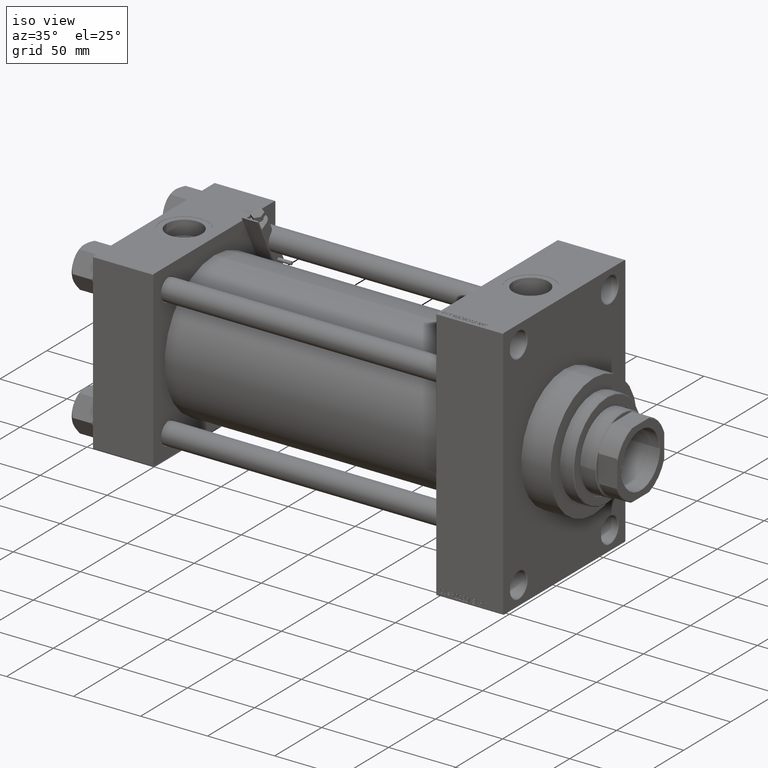
[diagram: clean part render]
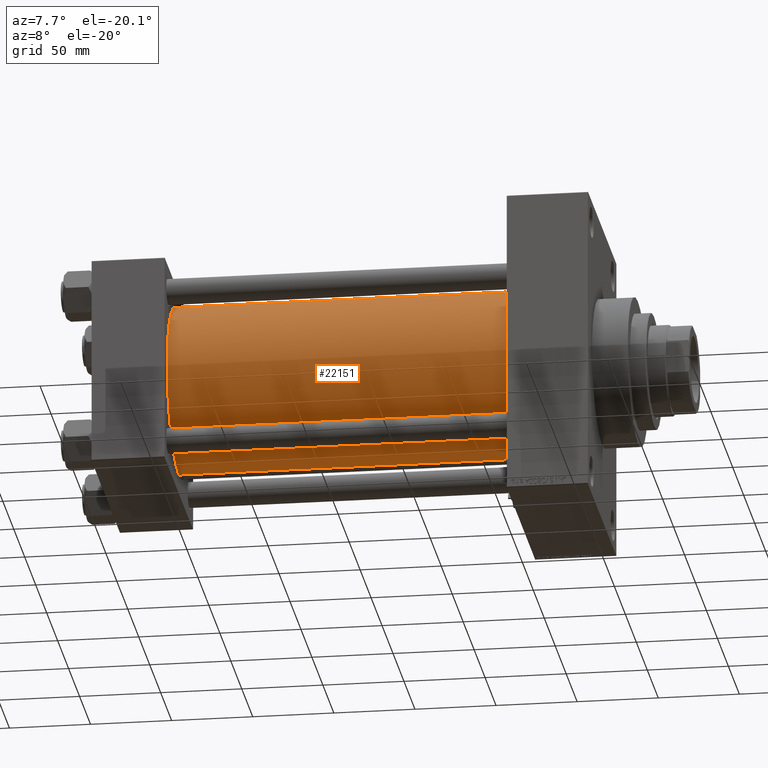
[diagram: tour spotlight — one face highlighted and labeled with its STEP entity id]
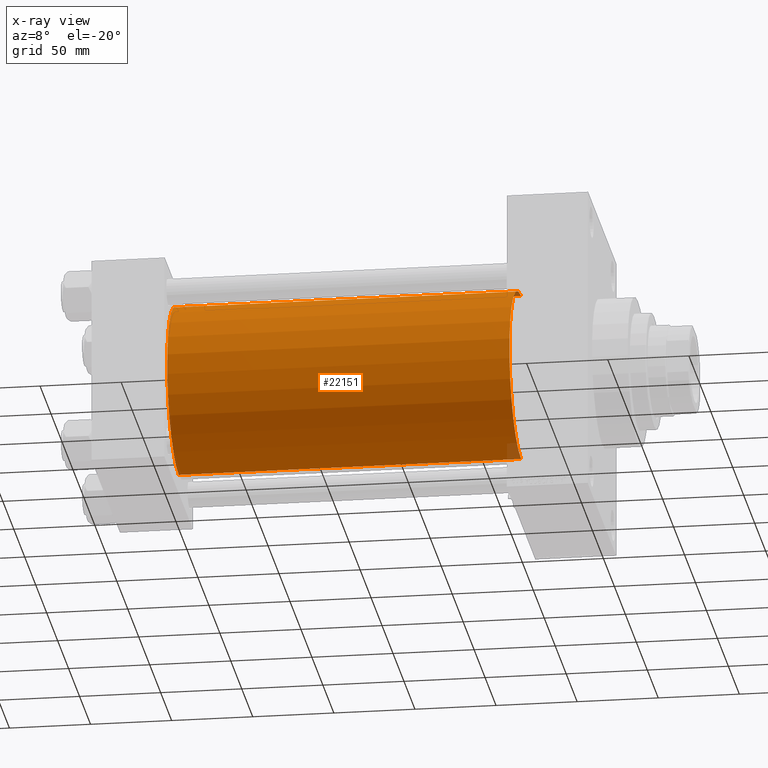
[diagram: x-ray of the same camera — body ghosted, this tour face saturated]
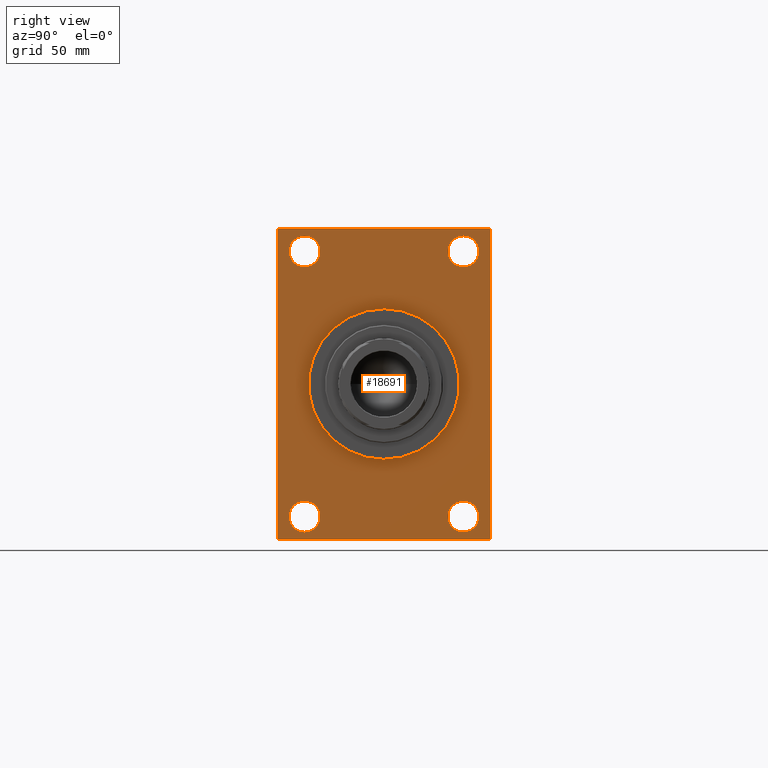
[diagram: tour spotlight — one face highlighted and labeled with its STEP entity id]
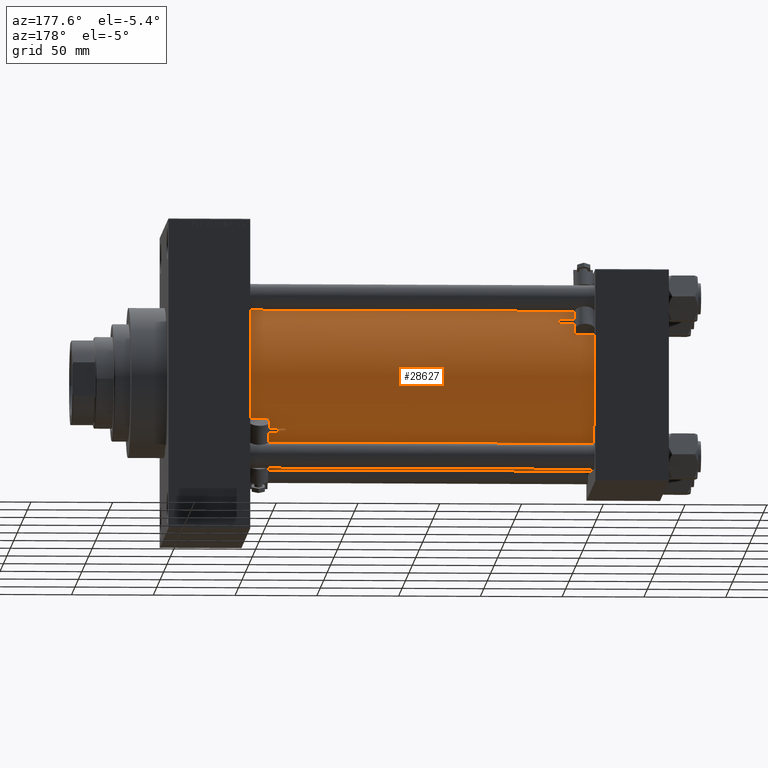
[diagram: tour spotlight — one face highlighted and labeled with its STEP entity id]
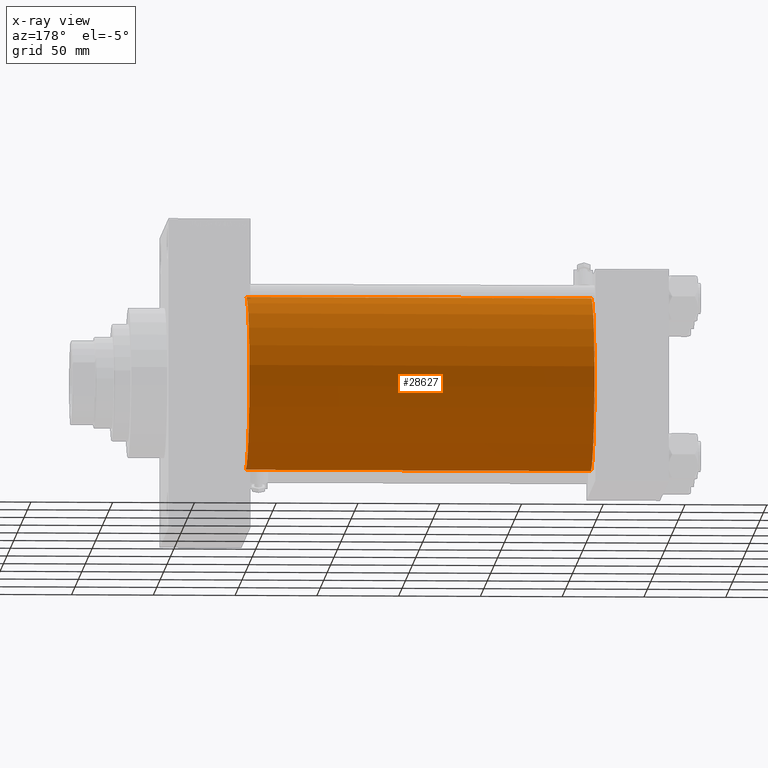
[diagram: x-ray of the same camera — body ghosted, this tour face saturated]
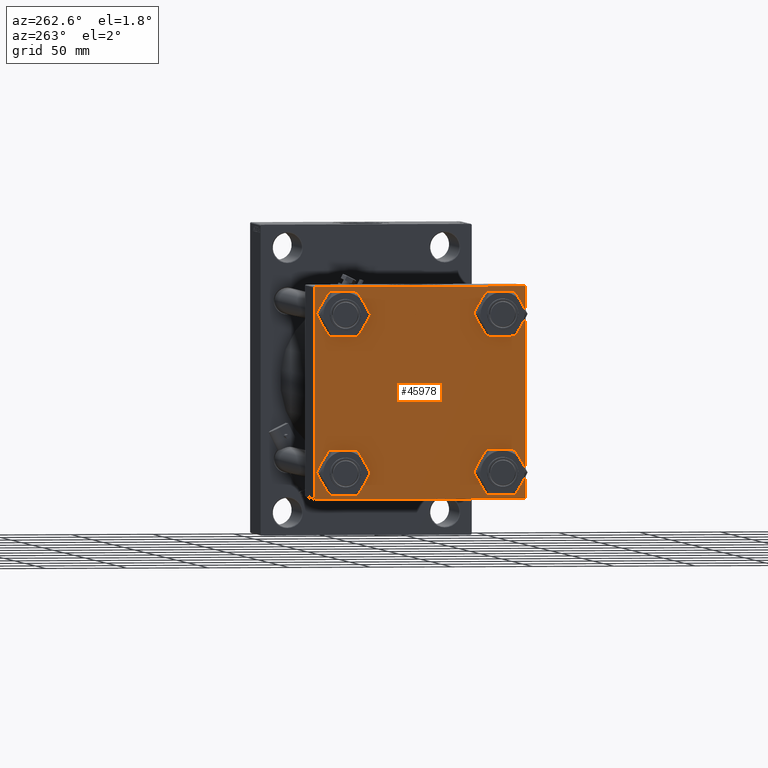
[diagram: tour spotlight — one face highlighted and labeled with its STEP entity id]
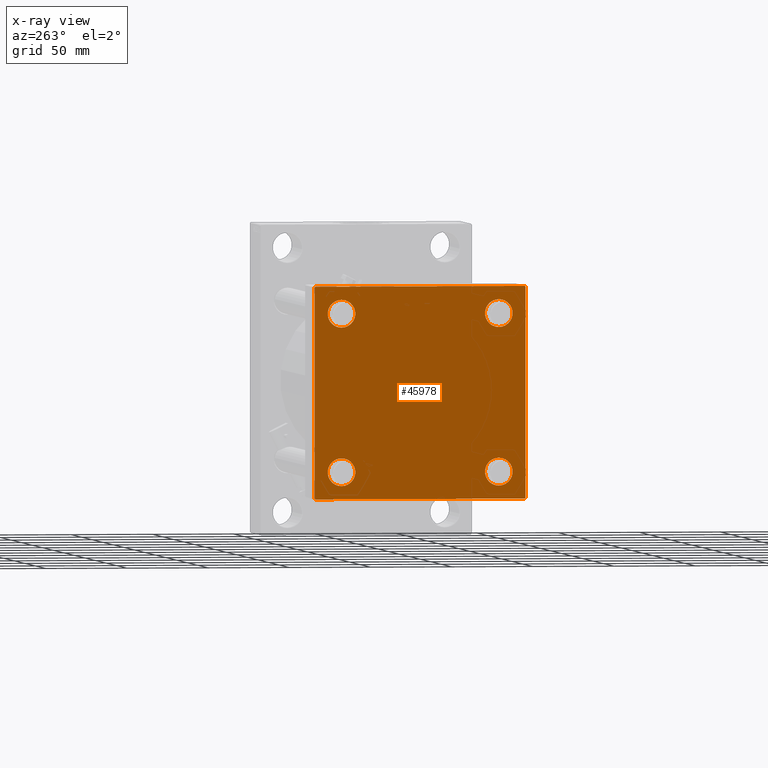
[diagram: x-ray of the same camera — body ghosted, this tour face saturated]
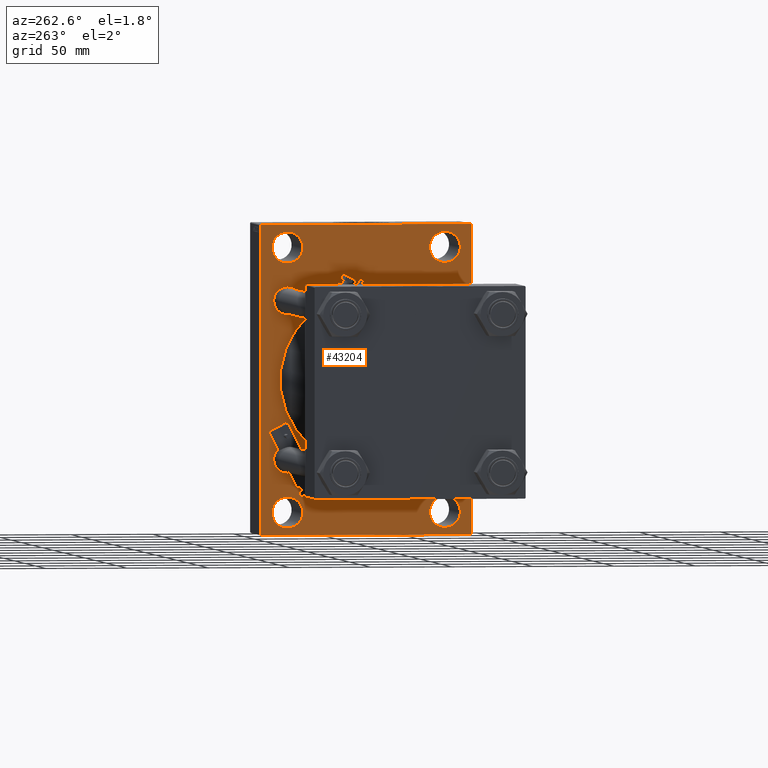
[diagram: tour spotlight — one face highlighted and labeled with its STEP entity id]
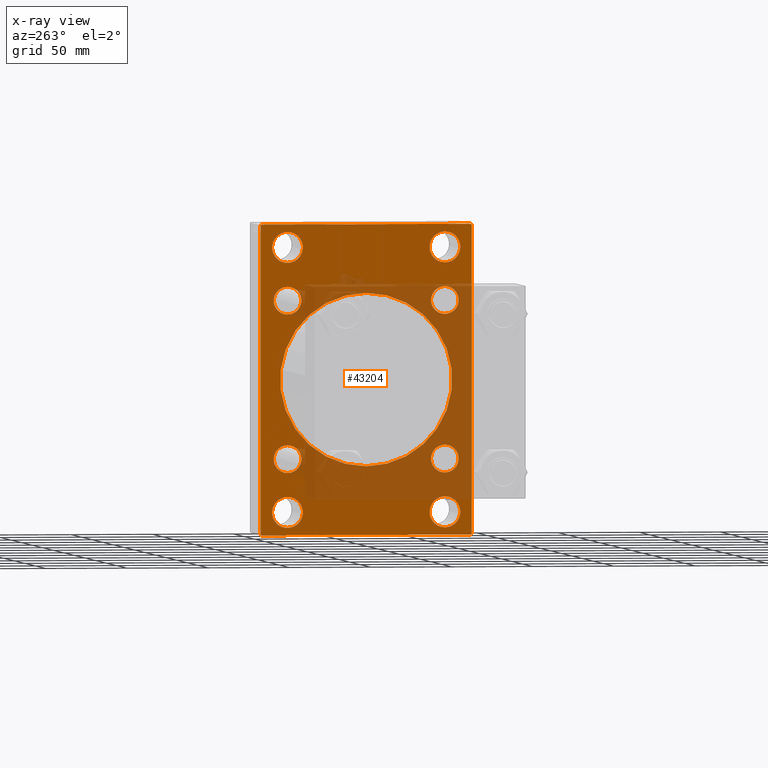
[diagram: x-ray of the same camera — body ghosted, this tour face saturated]
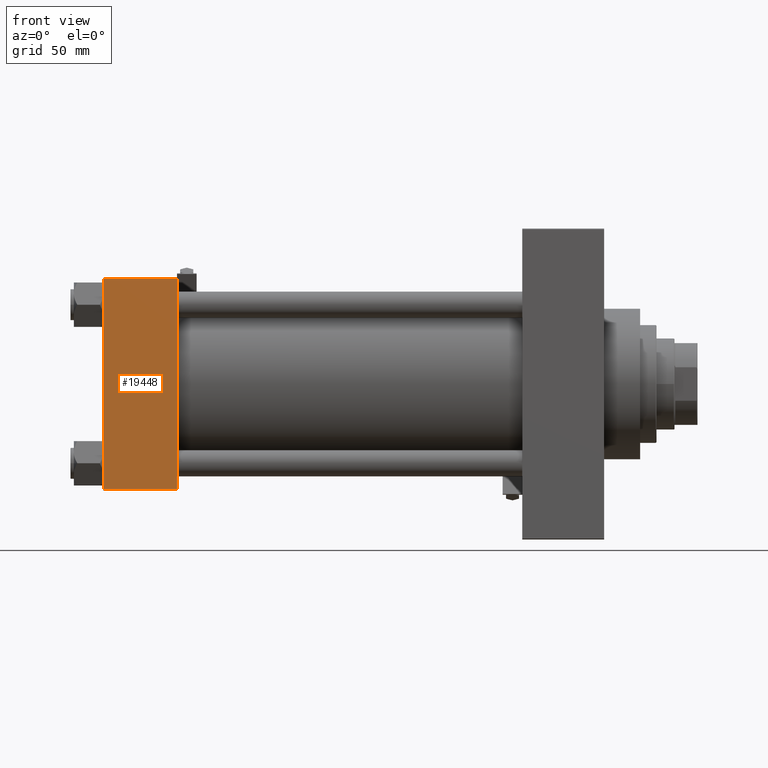
[diagram: tour spotlight — one face highlighted and labeled with its STEP entity id]
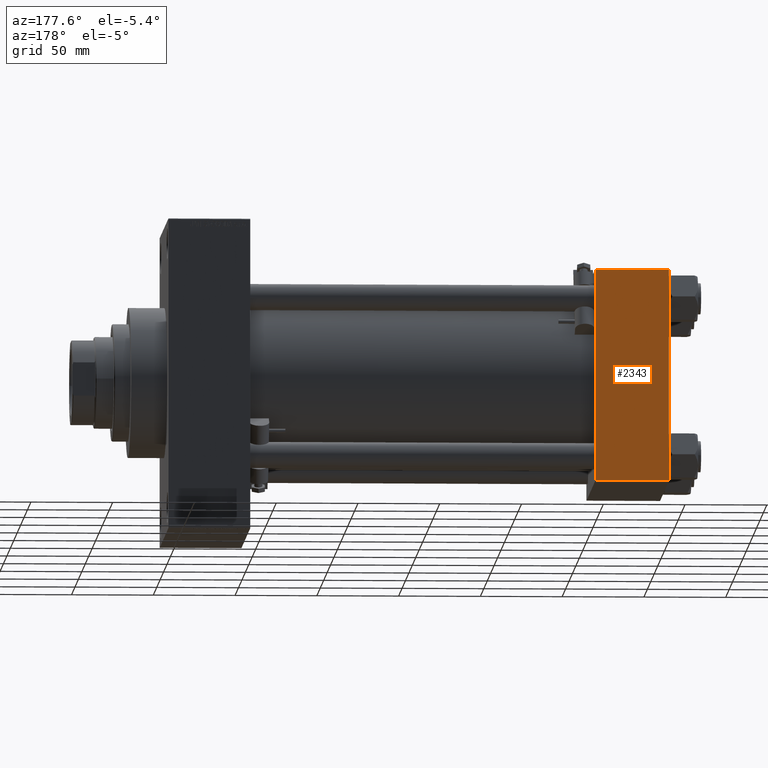
[diagram: tour spotlight — one face highlighted and labeled with its STEP entity id]
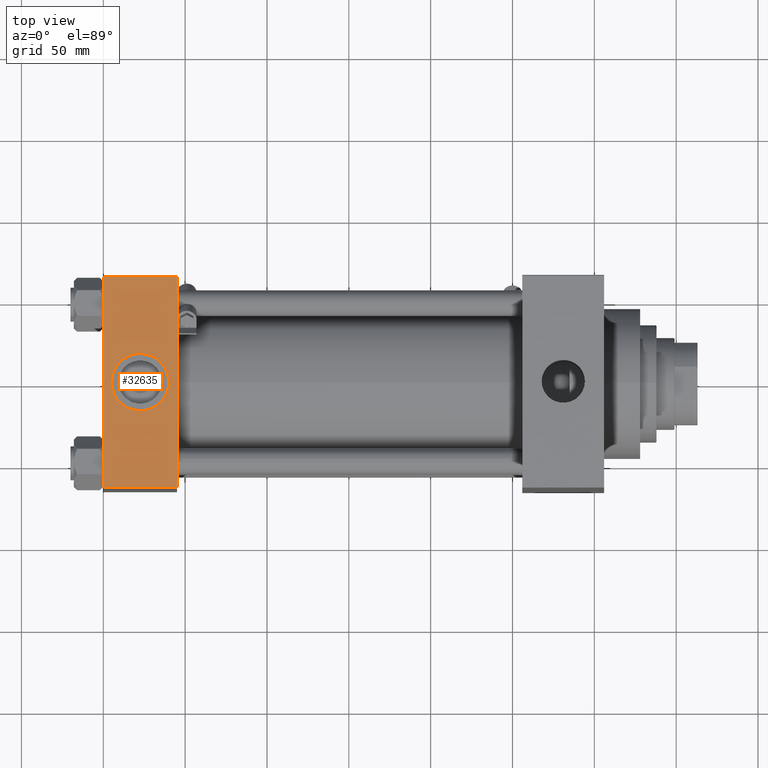
[diagram: tour spotlight — one face highlighted and labeled with its STEP entity id]
A machine part: a face-by-face anatomy tour. The part has 1215 B-rep faces; the first image is the clean iso view, then the 8 largest visible faces are spotlighted one at a time (largest first), each with its STEP entity span.

Face 1 — auxiliary view, entity #22151. An x-ray twin of the same camera follows (body ghosted, this face saturated) — the face is partly hidden behind the body. In plain terms, the highlighted cylindrical surface (partial cylindrical patch) has radius 53 mm, axis along (-1, -0, -0).
Definition (entity closure, byte-faithful):
#608 = LINE ( 'NONE', #11954, #42237 ) ;
#1291 = CARTESIAN_POINT ( 'NONE',  ( 44.99999999999998579, -2.602085213965210642E-15, 0.000000000000000000 ) ) ;
#1535 = DIRECTION ( 'NONE',  ( 1.000000000000000000, -0.000000000000000000, 0.000000000000000000 ) ) ;
#1915 = VERTEX_POINT ( 'NONE', #34619 ) ;
#4091 = VECTOR ( 'NONE', #32385, 1000.000000000000000 ) ;
#4720 = VERTEX_POINT ( 'NONE', #29196 ) ;
#6953 = ORIENTED_EDGE ( 'NONE', *, *, #44540, .T. ) ;
#8193 = CARTESIAN_POINT ( 'NONE',  ( 256.0000000000000000, 3.888542821515762466E-15, -53.00000000000000711 ) ) ;
#8218 = CIRCLE ( 'NONE', #21674, 53.00000000000000711 ) ;
#8531 = CIRCLE ( 'NONE', #36123, 53.00000000000000711 ) ;
#11954 = CARTESIAN_POINT ( 'NONE',  ( 256.0000000000000000, 3.888542821515762466E-15, -53.00000000000000711 ) ) ;
#12958 = FACE_OUTER_BOUND ( 'NONE', #44410, .T. ) ;
#14367 = EDGE_CURVE ( 'NONE', #4720, #32654, #28200, .T. ) ;
#15981 = DIRECTION ( 'NONE',  ( 0.000000000000000000, 0.000000000000000000, -1.000000000000000000 ) ) ;
#17343 = CARTESIAN_POINT ( 'NONE',  ( 256.0000000000000000, -2.602085213965210642E-15, 53.00000000000000711 ) ) ;
#20344 = DIRECTION ( 'NONE',  ( -1.000000000000000000, -0.000000000000000000, -0.000000000000000000 ) ) ;
#20566 = EDGE_CURVE ( 'NONE', #4720, #21253, #8218, .T. ) ;
#21253 = VERTEX_POINT ( 'NONE', #8193 ) ;
#21674 = AXIS2_PLACEMENT_3D ( 'NONE', #40690, #30793, #15981 ) ;
#22151 = ADVANCED_FACE ( 'NONE', ( #12958 ), #32198, .T. ) ;
#24062 = AXIS2_PLACEMENT_3D ( 'NONE', #47030, #43561, #43321 ) ;
#24733 = DIRECTION ( 'NONE',  ( 0.000000000000000000, 0.000000000000000000, 1.000000000000000000 ) ) ;
#27693 = ORIENTED_EDGE ( 'NONE', *, *, #34762, .F. ) ;
#28200 = LINE ( 'NONE', #17343, #4091 ) ;
#28866 = CARTESIAN_POINT ( 'NONE',  ( 44.99999999999998579, -2.602085213965210642E-15, 53.00000000000000711 ) ) ;
#29196 = CARTESIAN_POINT ( 'NONE',  ( 256.0000000000000000, -2.602085213965210642E-15, 53.00000000000000711 ) ) ;
#30793 = DIRECTION ( 'NONE',  ( 1.000000000000000000, 0.000000000000000000, 0.000000000000000000 ) ) ;
#32198 = CYLINDRICAL_SURFACE ( 'NONE', #24062, 53.00000000000000711 ) ;
#32385 = DIRECTION ( 'NONE',  ( -1.000000000000000000, -0.000000000000000000, -0.000000000000000000 ) ) ;
#32654 = VERTEX_POINT ( 'NONE', #28866 ) ;
#34619 = CARTESIAN_POINT ( 'NONE',  ( 44.99999999999998579, 3.888542821515762466E-15, -53.00000000000000711 ) ) ;
#34762 = EDGE_CURVE ( 'NONE', #21253, #1915, #608, .T. ) ;
#36123 = AXIS2_PLACEMENT_3D ( 'NONE', #1291, #1535, #24733 ) ;
#40690 = CARTESIAN_POINT ( 'NONE',  ( 256.0000000000000000, -2.602085213965210642E-15, 0.000000000000000000 ) ) ;
#41629 = ORIENTED_EDGE ( 'NONE', *, *, #20566, .F. ) ;
#42237 = VECTOR ( 'NONE', #20344, 1000.000000000000000 ) ;
#43321 = DIRECTION ( 'NONE',  ( 0.000000000000000000, 0.000000000000000000, 1.000000000000000000 ) ) ;
#43561 = DIRECTION ( 'NONE',  ( -1.000000000000000000, -0.000000000000000000, -0.000000000000000000 ) ) ;
#44410 = EDGE_LOOP ( 'NONE', ( #27693, #41629, #47230, #6953 ) ) ;
#44540 = EDGE_CURVE ( 'NONE', #32654, #1915, #8531, .T. ) ;
#47030 = CARTESIAN_POINT ( 'NONE',  ( 256.0000000000000000, -2.602085213965210642E-15, 0.000000000000000000 ) ) ;
#47230 = ORIENTED_EDGE ( 'NONE', *, *, #14367, .T. ) ;

Face 2 — right view, entity #18691. In plain terms, the highlighted planar face has unit normal (-1, 0, 0).
Definition (entity closure, byte-faithful):
#447 = CARTESIAN_POINT ( 'NONE',  ( 306.0000000000000000, -64.50000000000001421, -95.00000000000002842 ) ) ;
#869 = ORIENTED_EDGE ( 'NONE', *, *, #40958, .F. ) ;
#932 = VERTEX_POINT ( 'NONE', #10440 ) ;
#1074 = AXIS2_PLACEMENT_3D ( 'NONE', #6109, #14024, #21190 ) ;
#1316 = AXIS2_PLACEMENT_3D ( 'NONE', #25566, #42262, #18907 ) ;
#1434 = EDGE_LOOP ( 'NONE', ( #11078, #7318 ) ) ;
#1471 = DIRECTION ( 'NONE',  ( 0.000000000000000000, 0.000000000000000000, 1.000000000000000000 ) ) ;
#1546 = CIRCLE ( 'NONE', #8655, 9.500000000000119016 ) ;
#1989 = EDGE_CURVE ( 'NONE', #3206, #29194, #16854, .T. ) ;
#2632 = ORIENTED_EDGE ( 'NONE', *, *, #35499, .T. ) ;
#3206 = VERTEX_POINT ( 'NONE', #42251 ) ;
#4611 = CARTESIAN_POINT ( 'NONE',  ( 306.0000000000000000, -48.49999999999999289, -90.50000000000014211 ) ) ;
#4671 = CARTESIAN_POINT ( 'NONE',  ( 306.0000000000000000, -48.50000000000000000, 81.00000000000000000 ) ) ;
#4975 = DIRECTION ( 'NONE',  ( -1.000000000000000000, 0.000000000000000000, -0.000000000000000000 ) ) ;
#4989 = CARTESIAN_POINT ( 'NONE',  ( 306.0000000000000000, 64.99999999999997158, 94.99999999999997158 ) ) ;
#5777 = VERTEX_POINT ( 'NONE', #36671 ) ;
#5906 = EDGE_CURVE ( 'NONE', #39029, #14162, #15208, .T. ) ;
#5943 = DIRECTION ( 'NONE',  ( 0.000000000000000000, 0.000000000000000000, -1.000000000000000000 ) ) ;
#6109 = CARTESIAN_POINT ( 'NONE',  ( 306.0000000000000000, 0.000000000000000000, 0.000000000000000000 ) ) ;
#6182 = CARTESIAN_POINT ( 'NONE',  ( 306.0000000000000000, 0.000000000000000000, 0.000000000000000000 ) ) ;
#6366 = CARTESIAN_POINT ( 'NONE',  ( 306.0000000000000000, -65.00000000000001421, 94.99999999999997158 ) ) ;
#6502 = AXIS2_PLACEMENT_3D ( 'NONE', #31634, #4975, #38796 ) ;
#7111 = EDGE_CURVE ( 'NONE', #12887, #40553, #1546, .T. ) ;
#7262 = ORIENTED_EDGE ( 'NONE', *, *, #29428, .T. ) ;
#7318 = ORIENTED_EDGE ( 'NONE', *, *, #7111, .T. ) ;
#7688 = CIRCLE ( 'NONE', #13240, 9.500000000000063949 ) ;
#8312 = DIRECTION ( 'NONE',  ( 0.000000000000000000, 0.000000000000000000, 1.000000000000000000 ) ) ;
#8565 = DIRECTION ( 'NONE',  ( 0.000000000000000000, 0.7071067811865868746, -0.7071067811865081598 ) ) ;
#8655 = AXIS2_PLACEMENT_3D ( 'NONE', #38585, #37863, #15418 ) ;
#8787 = ORIENTED_EDGE ( 'NONE', *, *, #36587, .T. ) ;
#8891 = EDGE_CURVE ( 'NONE', #5777, #15798, #31567, .T. ) ;
#9255 = CIRCLE ( 'NONE', #15552, 46.00000000000000000 ) ;
#9356 = EDGE_CURVE ( 'NONE', #10928, #932, #30837, .T. ) ;
#9538 = ORIENTED_EDGE ( 'NONE', *, *, #48616, .T. ) ;
#9575 = PLANE ( 'NONE',  #1074 ) ;
#10256 = DIRECTION ( 'NONE',  ( 0.000000000000000000, 0.000000000000000000, 1.000000000000000000 ) ) ;
#10290 = AXIS2_PLACEMENT_3D ( 'NONE', #6182, #39755, #5943 ) ;
#10440 = CARTESIAN_POINT ( 'NONE',  ( 306.0000000000000000, 48.50000000000000711, -71.49999999999990052 ) ) ;
#10928 = VERTEX_POINT ( 'NONE', #12413 ) ;
#11078 = ORIENTED_EDGE ( 'NONE', *, *, #25964, .T. ) ;
#11910 = ORIENTED_EDGE ( 'NONE', *, *, #30190, .F. ) ;
#12120 = CARTESIAN_POINT ( 'NONE',  ( 306.0000000000000000, 64.99999999999998579, -95.00000000000001421 ) ) ;
#12349 = CARTESIAN_POINT ( 'NONE',  ( 306.0000000000000000, 48.50000000000000711, -81.00000000000001421 ) ) ;
#12350 = CARTESIAN_POINT ( 'NONE',  ( 306.0000000000000000, -48.49999999999999289, -71.49999999999990052 ) ) ;
#12413 = CARTESIAN_POINT ( 'NONE',  ( 306.0000000000000000, 48.50000000000000711, -90.50000000000014211 ) ) ;
#12608 = EDGE_CURVE ( 'NONE', #30908, #20849, #25436, .T. ) ;
#12887 = VERTEX_POINT ( 'NONE', #12350 ) ;
#13150 = DIRECTION ( 'NONE',  ( 0.000000000000000000, -1.000000000000000000, 0.000000000000000000 ) ) ;
#13204 = EDGE_CURVE ( 'NONE', #27687, #39521, #19151, .T. ) ;
#13240 = AXIS2_PLACEMENT_3D ( 'NONE', #43358, #21868, #10256 ) ;
#14024 = DIRECTION ( 'NONE',  ( -1.000000000000000000, 0.000000000000000000, -0.000000000000000000 ) ) ;
#14162 = VERTEX_POINT ( 'NONE', #33969 ) ;
#14330 = ORIENTED_EDGE ( 'NONE', *, *, #19068, .T. ) ;
#15208 = LINE ( 'NONE', #30247, #22040 ) ;
#15418 = DIRECTION ( 'NONE',  ( 0.000000000000000000, 0.000000000000000000, 1.000000000000000000 ) ) ;
#15552 = AXIS2_PLACEMENT_3D ( 'NONE', #32170, #38840, #20829 ) ;
#15798 = VERTEX_POINT ( 'NONE', #36389 ) ;
#16200 = EDGE_LOOP ( 'NONE', ( #2632, #26049, #869, #9538, #39647, #7262, #43707, #27516 ) ) ;
#16854 = LINE ( 'NONE', #4989, #40523 ) ;
#17151 = DIRECTION ( 'NONE',  ( 0.000000000000000000, 0.000000000000000000, 1.000000000000000000 ) ) ;
#17242 = LINE ( 'NONE', #40173, #46121 ) ;
#17484 = FACE_BOUND ( 'NONE', #20795, .T. ) ;
#17724 = FACE_BOUND ( 'NONE', #24162, .T. ) ;
#18166 = VERTEX_POINT ( 'NONE', #26817 ) ;
#18691 = ADVANCED_FACE ( 'NONE', ( #17724, #39920, #44137, #17484, #39446, #32760 ), #9575, .F. ) ;
#18714 = CARTESIAN_POINT ( 'NONE',  ( 306.0000000000000000, -65.00000000000001421, -94.50000000000008527 ) ) ;
#18907 = DIRECTION ( 'NONE',  ( 0.000000000000000000, 0.000000000000000000, 1.000000000000000000 ) ) ;
#19068 = EDGE_CURVE ( 'NONE', #20849, #30908, #34970, .T. ) ;
#19151 = CIRCLE ( 'NONE', #19954, 9.500000000000063949 ) ;
#19549 = LINE ( 'NONE', #12120, #21838 ) ;
#19954 = AXIS2_PLACEMENT_3D ( 'NONE', #43312, #40075, #17151 ) ;
#20164 = CARTESIAN_POINT ( 'NONE',  ( 306.0000000000000000, -64.50000000000001421, -95.00000000000002842 ) ) ;
#20795 = EDGE_LOOP ( 'NONE', ( #44277, #34199 ) ) ;
#20829 = DIRECTION ( 'NONE',  ( 0.000000000000000000, 0.000000000000000000, -1.000000000000000000 ) ) ;
#20849 = VERTEX_POINT ( 'NONE', #25334 ) ;
#21190 = DIRECTION ( 'NONE',  ( -0.000000000000000000, 0.000000000000000000, 1.000000000000000000 ) ) ;
#21801 = VECTOR ( 'NONE', #8565, 1000.000000000000000 ) ;
#21838 = VECTOR ( 'NONE', #42241, 1000.000000000000000 ) ;
#21853 = CARTESIAN_POINT ( 'NONE',  ( 306.0000000000000000, 64.99999999999997158, 94.50000000000002842 ) ) ;
#21868 = DIRECTION ( 'NONE',  ( -1.000000000000000000, 0.000000000000000000, -0.000000000000000000 ) ) ;
#22040 = VECTOR ( 'NONE', #45329, 1000.000000000000000 ) ;
#22351 = CARTESIAN_POINT ( 'NONE',  ( 306.0000000000000000, 48.50000000000000711, 90.50000000000007105 ) ) ;
#23353 = VECTOR ( 'NONE', #36240, 1000.000000000000000 ) ;
#23409 = EDGE_LOOP ( 'NONE', ( #37583, #8787 ) ) ;
#23515 = CARTESIAN_POINT ( 'NONE',  ( 306.0000000000000000, 64.99999999999998579, -94.50000000000002842 ) ) ;
#23680 = LINE ( 'NONE', #45902, #40721 ) ;
#23689 = DIRECTION ( 'NONE',  ( 0.000000000000000000, 0.000000000000000000, 1.000000000000000000 ) ) ;
#23924 = CARTESIAN_POINT ( 'NONE',  ( 306.0000000000000000, 48.50000000000000711, 71.49999999999994316 ) ) ;
#24162 = EDGE_LOOP ( 'NONE', ( #32086, #14330 ) ) ;
#24247 = DIRECTION ( 'NONE',  ( -0.000000000000000000, 0.7071067811865573427, 0.7071067811865378028 ) ) ;
#24341 = ORIENTED_EDGE ( 'NONE', *, *, #8891, .F. ) ;
#25241 = VECTOR ( 'NONE', #24247, 1000.000000000000000 ) ;
#25334 = CARTESIAN_POINT ( 'NONE',  ( 306.0000000000000000, -48.50000000000000000, 90.50000000000007105 ) ) ;
#25369 = DIRECTION ( 'NONE',  ( -0.000000000000000000, -0.7071067811864985009, -0.7071067811865965336 ) ) ;
#25436 = CIRCLE ( 'NONE', #6502, 9.500000000000063949 ) ;
#25566 = CARTESIAN_POINT ( 'NONE',  ( 306.0000000000000000, -48.49999999999999289, -81.00000000000001421 ) ) ;
#25964 = EDGE_CURVE ( 'NONE', #40553, #12887, #32091, .T. ) ;
#26049 = ORIENTED_EDGE ( 'NONE', *, *, #36880, .T. ) ;
#26817 = CARTESIAN_POINT ( 'NONE',  ( 306.0000000000000000, -65.00000000000001421, 94.49999999999997158 ) ) ;
#27516 = ORIENTED_EDGE ( 'NONE', *, *, #33322, .T. ) ;
#27687 = VERTEX_POINT ( 'NONE', #22351 ) ;
#27820 = LINE ( 'NONE', #447, #21801 ) ;
#29194 = VERTEX_POINT ( 'NONE', #37380 ) ;
#29428 = EDGE_CURVE ( 'NONE', #39029, #3206, #23680, .T. ) ;
#30190 = EDGE_CURVE ( 'NONE', #15798, #5777, #9255, .T. ) ;
#30247 = CARTESIAN_POINT ( 'NONE',  ( 306.0000000000000000, 64.99999999999997158, 94.99999999999997158 ) ) ;
#30837 = CIRCLE ( 'NONE', #39497, 9.500000000000119016 ) ;
#30908 = VERTEX_POINT ( 'NONE', #48171 ) ;
#31506 = DIRECTION ( 'NONE',  ( -1.000000000000000000, 0.000000000000000000, -0.000000000000000000 ) ) ;
#31567 = CIRCLE ( 'NONE', #10290, 46.00000000000000000 ) ;
#31634 = CARTESIAN_POINT ( 'NONE',  ( 306.0000000000000000, -48.50000000000000000, 81.00000000000000000 ) ) ;
#32086 = ORIENTED_EDGE ( 'NONE', *, *, #12608, .T. ) ;
#32091 = CIRCLE ( 'NONE', #1316, 9.500000000000119016 ) ;
#32170 = CARTESIAN_POINT ( 'NONE',  ( 306.0000000000000000, 0.000000000000000000, 0.000000000000000000 ) ) ;
#32760 = FACE_OUTER_BOUND ( 'NONE', #16200, .T. ) ;
#33322 = EDGE_CURVE ( 'NONE', #29194, #18166, #17242, .T. ) ;
#33969 = CARTESIAN_POINT ( 'NONE',  ( 306.0000000000000000, 64.99999999999998579, -94.50000000000002842 ) ) ;
#34199 = ORIENTED_EDGE ( 'NONE', *, *, #13204, .T. ) ;
#34302 = DIRECTION ( 'NONE',  ( -1.000000000000000000, 0.000000000000000000, -0.000000000000000000 ) ) ;
#34491 = CARTESIAN_POINT ( 'NONE',  ( 306.0000000000000000, 48.50000000000000711, -81.00000000000001421 ) ) ;
#34970 = CIRCLE ( 'NONE', #46012, 9.500000000000063949 ) ;
#35499 = EDGE_CURVE ( 'NONE', #18166, #38788, #47858, .T. ) ;
#36240 = DIRECTION ( 'NONE',  ( 0.000000000000000000, 0.000000000000000000, -1.000000000000000000 ) ) ;
#36389 = CARTESIAN_POINT ( 'NONE',  ( 306.0000000000000000, 5.633375276077824704E-15, -46.00000000000000000 ) ) ;
#36587 = EDGE_CURVE ( 'NONE', #932, #10928, #43089, .T. ) ;
#36671 = CARTESIAN_POINT ( 'NONE',  ( 306.0000000000000000, 0.000000000000000000, 46.00000000000000000 ) ) ;
#36880 = EDGE_CURVE ( 'NONE', #38788, #40597, #27820, .T. ) ;
#36913 = EDGE_LOOP ( 'NONE', ( #24341, #11910 ) ) ;
#37380 = CARTESIAN_POINT ( 'NONE',  ( 306.0000000000000000, -64.50000000000008527, 94.99999999999997158 ) ) ;
#37583 = ORIENTED_EDGE ( 'NONE', *, *, #9356, .T. ) ;
#37863 = DIRECTION ( 'NONE',  ( -1.000000000000000000, 0.000000000000000000, -0.000000000000000000 ) ) ;
#38585 = CARTESIAN_POINT ( 'NONE',  ( 306.0000000000000000, -48.49999999999999289, -81.00000000000001421 ) ) ;
#38788 = VERTEX_POINT ( 'NONE', #18714 ) ;
#38796 = DIRECTION ( 'NONE',  ( 0.000000000000000000, 0.000000000000000000, 1.000000000000000000 ) ) ;
#38840 = DIRECTION ( 'NONE',  ( 1.000000000000000000, 0.000000000000000000, 0.000000000000000000 ) ) ;
#39029 = VERTEX_POINT ( 'NONE', #21853 ) ;
#39287 = LINE ( 'NONE', #23515, #25241 ) ;
#39446 = FACE_BOUND ( 'NONE', #36913, .T. ) ;
#39497 = AXIS2_PLACEMENT_3D ( 'NONE', #34491, #31506, #8312 ) ;
#39521 = VERTEX_POINT ( 'NONE', #23924 ) ;
#39647 = ORIENTED_EDGE ( 'NONE', *, *, #5906, .F. ) ;
#39755 = DIRECTION ( 'NONE',  ( 1.000000000000000000, 0.000000000000000000, 0.000000000000000000 ) ) ;
#39920 = FACE_BOUND ( 'NONE', #1434, .T. ) ;
#40075 = DIRECTION ( 'NONE',  ( -1.000000000000000000, 0.000000000000000000, -0.000000000000000000 ) ) ;
#40173 = CARTESIAN_POINT ( 'NONE',  ( 306.0000000000000000, -65.00000000000001421, 94.49999999999997158 ) ) ;
#40523 = VECTOR ( 'NONE', #13150, 1000.000000000000000 ) ;
#40553 = VERTEX_POINT ( 'NONE', #4611 ) ;
#40597 = VERTEX_POINT ( 'NONE', #20164 ) ;
#40721 = VECTOR ( 'NONE', #41954, 1000.000000000000000 ) ;
#40958 = EDGE_CURVE ( 'NONE', #46835, #40597, #19549, .T. ) ;
#41954 = DIRECTION ( 'NONE',  ( 0.000000000000000000, -0.7071067811865868746, 0.7071067811865081598 ) ) ;
#41980 = DIRECTION ( 'NONE',  ( -1.000000000000000000, 0.000000000000000000, -0.000000000000000000 ) ) ;
#42241 = DIRECTION ( 'NONE',  ( 0.000000000000000000, -1.000000000000000000, -1.067522139062650425E-16 ) ) ;
#42251 = CARTESIAN_POINT ( 'NONE',  ( 306.0000000000000000, 64.49999999999997158, 94.99999999999997158 ) ) ;
#42262 = DIRECTION ( 'NONE',  ( -1.000000000000000000, 0.000000000000000000, -0.000000000000000000 ) ) ;
#42621 = CARTESIAN_POINT ( 'NONE',  ( 306.0000000000000000, 64.49999999999998579, -95.00000000000001421 ) ) ;
#43089 = CIRCLE ( 'NONE', #44681, 9.500000000000119016 ) ;
#43209 = EDGE_CURVE ( 'NONE', #39521, #27687, #7688, .T. ) ;
#43312 = CARTESIAN_POINT ( 'NONE',  ( 306.0000000000000000, 48.50000000000000711, 81.00000000000000000 ) ) ;
#43358 = CARTESIAN_POINT ( 'NONE',  ( 306.0000000000000000, 48.50000000000000711, 81.00000000000000000 ) ) ;
#43707 = ORIENTED_EDGE ( 'NONE', *, *, #1989, .T. ) ;
#44137 = FACE_BOUND ( 'NONE', #23409, .T. ) ;
#44277 = ORIENTED_EDGE ( 'NONE', *, *, #43209, .T. ) ;
#44681 = AXIS2_PLACEMENT_3D ( 'NONE', #12349, #41980, #1471 ) ;
#45329 = DIRECTION ( 'NONE',  ( 0.000000000000000000, 7.304098846218135653E-17, -1.000000000000000000 ) ) ;
#45902 = CARTESIAN_POINT ( 'NONE',  ( 306.0000000000000000, 64.49999999999997158, 94.99999999999997158 ) ) ;
#46012 = AXIS2_PLACEMENT_3D ( 'NONE', #4671, #34302, #23689 ) ;
#46121 = VECTOR ( 'NONE', #25369, 1000.000000000000114 ) ;
#46835 = VERTEX_POINT ( 'NONE', #42621 ) ;
#47858 = LINE ( 'NONE', #6366, #23353 ) ;
#48171 = CARTESIAN_POINT ( 'NONE',  ( 306.0000000000000000, -48.50000000000000000, 71.49999999999994316 ) ) ;
#48616 = EDGE_CURVE ( 'NONE', #46835, #14162, #39287, .T. ) ;

Face 3 — auxiliary view, entity #28627. An x-ray twin of the same camera follows (body ghosted, this face saturated) — the face is partly hidden behind the body. In plain terms, the highlighted cylindrical surface (partial cylindrical patch) has radius 53 mm, axis along (-1, -0, -0).
Definition (entity closure, byte-faithful):
#608 = LINE ( 'NONE', #11954, #42237 ) ;
#774 = EDGE_LOOP ( 'NONE', ( #43651, #36317, #34385, #30073 ) ) ;
#1915 = VERTEX_POINT ( 'NONE', #34619 ) ;
#3203 = FACE_OUTER_BOUND ( 'NONE', #774, .T. ) ;
#4091 = VECTOR ( 'NONE', #32385, 1000.000000000000000 ) ;
#4720 = VERTEX_POINT ( 'NONE', #29196 ) ;
#6895 = DIRECTION ( 'NONE',  ( -1.000000000000000000, -0.000000000000000000, -0.000000000000000000 ) ) ;
#7140 = CARTESIAN_POINT ( 'NONE',  ( 256.0000000000000000, -2.602085213965210642E-15, 0.000000000000000000 ) ) ;
#8193 = CARTESIAN_POINT ( 'NONE',  ( 256.0000000000000000, 3.888542821515762466E-15, -53.00000000000000711 ) ) ;
#8403 = AXIS2_PLACEMENT_3D ( 'NONE', #7140, #6895, #18524 ) ;
#11954 = CARTESIAN_POINT ( 'NONE',  ( 256.0000000000000000, 3.888542821515762466E-15, -53.00000000000000711 ) ) ;
#12311 = EDGE_CURVE ( 'NONE', #1915, #32654, #34104, .T. ) ;
#12941 = DIRECTION ( 'NONE',  ( 0.000000000000000000, 0.000000000000000000, 1.000000000000000000 ) ) ;
#13563 = CARTESIAN_POINT ( 'NONE',  ( 256.0000000000000000, -2.602085213965210642E-15, 0.000000000000000000 ) ) ;
#13804 = DIRECTION ( 'NONE',  ( 1.000000000000000000, 0.000000000000000000, 0.000000000000000000 ) ) ;
#14367 = EDGE_CURVE ( 'NONE', #4720, #32654, #28200, .T. ) ;
#17343 = CARTESIAN_POINT ( 'NONE',  ( 256.0000000000000000, -2.602085213965210642E-15, 53.00000000000000711 ) ) ;
#17380 = CARTESIAN_POINT ( 'NONE',  ( 44.99999999999998579, -2.602085213965210642E-15, 0.000000000000000000 ) ) ;
#18524 = DIRECTION ( 'NONE',  ( 0.000000000000000000, 0.000000000000000000, 1.000000000000000000 ) ) ;
#20344 = DIRECTION ( 'NONE',  ( -1.000000000000000000, -0.000000000000000000, -0.000000000000000000 ) ) ;
#21253 = VERTEX_POINT ( 'NONE', #8193 ) ;
#22021 = AXIS2_PLACEMENT_3D ( 'NONE', #13563, #13804, #28129 ) ;
#24376 = CIRCLE ( 'NONE', #22021, 53.00000000000000711 ) ;
#24774 = DIRECTION ( 'NONE',  ( 1.000000000000000000, -0.000000000000000000, 0.000000000000000000 ) ) ;
#28129 = DIRECTION ( 'NONE',  ( 0.000000000000000000, 0.000000000000000000, -1.000000000000000000 ) ) ;
#28200 = LINE ( 'NONE', #17343, #4091 ) ;
#28627 = ADVANCED_FACE ( 'NONE', ( #3203 ), #44189, .T. ) ;
#28866 = CARTESIAN_POINT ( 'NONE',  ( 44.99999999999998579, -2.602085213965210642E-15, 53.00000000000000711 ) ) ;
#29196 = CARTESIAN_POINT ( 'NONE',  ( 256.0000000000000000, -2.602085213965210642E-15, 53.00000000000000711 ) ) ;
#30073 = ORIENTED_EDGE ( 'NONE', *, *, #14367, .F. ) ;
#32385 = DIRECTION ( 'NONE',  ( -1.000000000000000000, -0.000000000000000000, -0.000000000000000000 ) ) ;
#32654 = VERTEX_POINT ( 'NONE', #28866 ) ;
#33294 = AXIS2_PLACEMENT_3D ( 'NONE', #17380, #24774, #12941 ) ;
#34104 = CIRCLE ( 'NONE', #33294, 53.00000000000000711 ) ;
#34385 = ORIENTED_EDGE ( 'NONE', *, *, #12311, .T. ) ;
#34619 = CARTESIAN_POINT ( 'NONE',  ( 44.99999999999998579, 3.888542821515762466E-15, -53.00000000000000711 ) ) ;
#34762 = EDGE_CURVE ( 'NONE', #21253, #1915, #608, .T. ) ;
#36317 = ORIENTED_EDGE ( 'NONE', *, *, #34762, .T. ) ;
#42237 = VECTOR ( 'NONE', #20344, 1000.000000000000000 ) ;
#43651 = ORIENTED_EDGE ( 'NONE', *, *, #46389, .F. ) ;
#44189 = CYLINDRICAL_SURFACE ( 'NONE', #8403, 53.00000000000000711 ) ;
#46389 = EDGE_CURVE ( 'NONE', #21253, #4720, #24376, .T. ) ;

Face 4 — auxiliary view, entity #45978. An x-ray twin of the same camera follows (body ghosted, this face saturated) — the face is partly hidden behind the body. In plain terms, the highlighted planar face has unit normal (-1, 0, 0).
Definition (entity closure, byte-faithful):
#492 = CIRCLE ( 'NONE', #42271, 8.500000000000007105 ) ;
#782 = EDGE_CURVE ( 'NONE', #9819, #33099, #47619, .T. ) ;
#812 = LINE ( 'NONE', #37603, #37391 ) ;
#1931 = EDGE_CURVE ( 'NONE', #11709, #43560, #812, .T. ) ;
#2195 = DIRECTION ( 'NONE',  ( 0.000000000000000000, 0.000000000000000000, 1.000000000000000000 ) ) ;
#2226 = DIRECTION ( 'NONE',  ( 0.000000000000000000, -0.7071067811865279218, 0.7071067811865671127 ) ) ;
#2687 = AXIS2_PLACEMENT_3D ( 'NONE', #31694, #12460, #43060 ) ;
#2821 = PLANE ( 'NONE',  #10932 ) ;
#2990 = CARTESIAN_POINT ( 'NONE',  ( 0.000000000000000000, 48.45000000000000995, 56.95000000000002416 ) ) ;
#3096 = CARTESIAN_POINT ( 'NONE',  ( 0.000000000000000000, -48.44999999999999574, 48.45000000000003126 ) ) ;
#3453 = VERTEX_POINT ( 'NONE', #25431 ) ;
#5378 = FACE_OUTER_BOUND ( 'NONE', #27655, .T. ) ;
#5391 = CARTESIAN_POINT ( 'NONE',  ( 0.000000000000000000, 48.45000000000000995, -39.95000000000000284 ) ) ;
#5459 = CARTESIAN_POINT ( 'NONE',  ( 0.000000000000000000, 64.49999999999997158, 65.00000000000001421 ) ) ;
#5683 = ORIENTED_EDGE ( 'NONE', *, *, #47968, .T. ) ;
#5917 = DIRECTION ( 'NONE',  ( 0.000000000000000000, -1.000000000000000000, -1.067522139062650425E-16 ) ) ;
#5921 = CARTESIAN_POINT ( 'NONE',  ( 0.000000000000000000, 48.45000000000000995, 39.95000000000000284 ) ) ;
#6614 = DIRECTION ( 'NONE',  ( 1.000000000000000000, -0.000000000000000000, 0.000000000000000000 ) ) ;
#6850 = VECTOR ( 'NONE', #44284, 1000.000000000000114 ) ;
#8398 = VERTEX_POINT ( 'NONE', #48147 ) ;
#9044 = CARTESIAN_POINT ( 'NONE',  ( -0.000000000000000000, -64.74999999999819522, 64.75000000000179057 ) ) ;
#9120 = EDGE_LOOP ( 'NONE', ( #44773, #28109 ) ) ;
#9199 = EDGE_CURVE ( 'NONE', #33099, #9819, #12727, .T. ) ;
#9274 = DIRECTION ( 'NONE',  ( 1.000000000000000000, -0.000000000000000000, 0.000000000000000000 ) ) ;
#9412 = EDGE_CURVE ( 'NONE', #26065, #43560, #42873, .T. ) ;
#9819 = VERTEX_POINT ( 'NONE', #2990 ) ;
#9842 = ORIENTED_EDGE ( 'NONE', *, *, #30711, .T. ) ;
#10006 = LINE ( 'NONE', #21143, #15432 ) ;
#10729 = VERTEX_POINT ( 'NONE', #43555 ) ;
#10932 = AXIS2_PLACEMENT_3D ( 'NONE', #32938, #33175, #25296 ) ;
#11444 = CARTESIAN_POINT ( 'NONE',  ( 0.000000000000000000, 65.00000000000000000, 64.49999999999998579 ) ) ;
#11709 = VERTEX_POINT ( 'NONE', #5459 ) ;
#12252 = CIRCLE ( 'NONE', #46973, 8.500000000000007105 ) ;
#12460 = DIRECTION ( 'NONE',  ( 1.000000000000000000, -0.000000000000000000, 0.000000000000000000 ) ) ;
#12589 = DIRECTION ( 'NONE',  ( 0.000000000000000000, 0.000000000000000000, -1.000000000000000000 ) ) ;
#12727 = CIRCLE ( 'NONE', #33182, 8.500000000000007105 ) ;
#12867 = EDGE_CURVE ( 'NONE', #45261, #10729, #47148, .T. ) ;
#13187 = CARTESIAN_POINT ( 'NONE',  ( 0.000000000000000000, -64.49999999999997158, 65.00000000000000000 ) ) ;
#14220 = CARTESIAN_POINT ( 'NONE',  ( 0.000000000000000000, -48.44999999999999574, -48.45000000000003126 ) ) ;
#15432 = VECTOR ( 'NONE', #17191, 1000.000000000000000 ) ;
#16784 = CARTESIAN_POINT ( 'NONE',  ( 0.000000000000000000, 65.00000000000000000, 65.00000000000001421 ) ) ;
#17050 = AXIS2_PLACEMENT_3D ( 'NONE', #20642, #9274, #31000 ) ;
#17191 = DIRECTION ( 'NONE',  ( 0.000000000000000000, 0.000000000000000000, -1.000000000000000000 ) ) ;
#17507 = CARTESIAN_POINT ( 'NONE',  ( 0.000000000000000000, 48.45000000000000995, 48.45000000000001705 ) ) ;
#19186 = DIRECTION ( 'NONE',  ( 0.000000000000000000, 0.000000000000000000, 1.000000000000000000 ) ) ;
#19783 = EDGE_CURVE ( 'NONE', #47296, #31056, #23196, .T. ) ;
#20079 = VECTOR ( 'NONE', #5917, 1000.000000000000000 ) ;
#20129 = LINE ( 'NONE', #27277, #20142 ) ;
#20142 = VECTOR ( 'NONE', #34449, 1000.000000000000114 ) ;
#20642 = CARTESIAN_POINT ( 'NONE',  ( 0.000000000000000000, -48.44999999999999574, -48.45000000000003126 ) ) ;
#20918 = VERTEX_POINT ( 'NONE', #25091 ) ;
#20996 = VECTOR ( 'NONE', #2226, 1000.000000000000000 ) ;
#21143 = CARTESIAN_POINT ( 'NONE',  ( 0.000000000000000000, -65.00000000000000000, 65.00000000000000000 ) ) ;
#21149 = DIRECTION ( 'NONE',  ( 0.000000000000000000, 0.000000000000000000, 1.000000000000000000 ) ) ;
#21197 = EDGE_LOOP ( 'NONE', ( #5683, #26126 ) ) ;
#21244 = ORIENTED_EDGE ( 'NONE', *, *, #23359, .T. ) ;
#21309 = ORIENTED_EDGE ( 'NONE', *, *, #1931, .F. ) ;
#21627 = DIRECTION ( 'NONE',  ( 1.000000000000000000, -0.000000000000000000, 0.000000000000000000 ) ) ;
#21763 = CARTESIAN_POINT ( 'NONE',  ( 0.000000000000000000, -48.44999999999999574, -39.95000000000001705 ) ) ;
#22617 = CARTESIAN_POINT ( 'NONE',  ( 0.000000000000000000, -65.00000000000000000, 64.50000000000000000 ) ) ;
#22873 = CIRCLE ( 'NONE', #29146, 8.500000000000007105 ) ;
#23196 = CIRCLE ( 'NONE', #38957, 8.500000000000007105 ) ;
#23359 = EDGE_CURVE ( 'NONE', #37940, #41881, #12252, .T. ) ;
#23666 = CARTESIAN_POINT ( 'NONE',  ( 0.000000000000000000, 48.45000000000000995, -48.45000000000001705 ) ) ;
#23698 = ORIENTED_EDGE ( 'NONE', *, *, #25961, .T. ) ;
#25091 = CARTESIAN_POINT ( 'NONE',  ( 0.000000000000000000, -64.49999999999994316, -65.00000000000000000 ) ) ;
#25296 = DIRECTION ( 'NONE',  ( -0.000000000000000000, 0.000000000000000000, 1.000000000000000000 ) ) ;
#25431 = CARTESIAN_POINT ( 'NONE',  ( 0.000000000000000000, 64.49999999999997158, -64.99999999999998579 ) ) ;
#25961 = EDGE_CURVE ( 'NONE', #44651, #42164, #28145, .T. ) ;
#26065 = VERTEX_POINT ( 'NONE', #22617 ) ;
#26121 = VECTOR ( 'NONE', #39161, 1000.000000000000000 ) ;
#26126 = ORIENTED_EDGE ( 'NONE', *, *, #19783, .T. ) ;
#26165 = EDGE_LOOP ( 'NONE', ( #23698, #37459 ) ) ;
#26248 = LINE ( 'NONE', #41062, #6850 ) ;
#27053 = DIRECTION ( 'NONE',  ( 1.000000000000000000, -0.000000000000000000, 0.000000000000000000 ) ) ;
#27277 = CARTESIAN_POINT ( 'NONE',  ( 0.000000000000000000, 64.74999999999998579, 64.74999999999998579 ) ) ;
#27458 = DIRECTION ( 'NONE',  ( 0.000000000000000000, -1.000000000000000000, -1.067522139062650425E-16 ) ) ;
#27655 = EDGE_LOOP ( 'NONE', ( #46831, #9842, #46919, #28693, #33831, #29930, #21309, #35037 ) ) ;
#27789 = EDGE_CURVE ( 'NONE', #41881, #37940, #492, .T. ) ;
#27841 = FACE_BOUND ( 'NONE', #26165, .T. ) ;
#28109 = ORIENTED_EDGE ( 'NONE', *, *, #9199, .T. ) ;
#28145 = CIRCLE ( 'NONE', #28914, 8.500000000000007105 ) ;
#28152 = LINE ( 'NONE', #28630, #20996 ) ;
#28532 = CARTESIAN_POINT ( 'NONE',  ( 0.000000000000000000, -48.44999999999999574, 48.45000000000003126 ) ) ;
#28630 = CARTESIAN_POINT ( 'NONE',  ( 0.000000000000000000, -64.75000000000176215, -64.74999999999816680 ) ) ;
#28693 = ORIENTED_EDGE ( 'NONE', *, *, #38332, .T. ) ;
#28914 = AXIS2_PLACEMENT_3D ( 'NONE', #14220, #32967, #37648 ) ;
#29146 = AXIS2_PLACEMENT_3D ( 'NONE', #28532, #47313, #48035 ) ;
#29812 = EDGE_LOOP ( 'NONE', ( #38604, #21244 ) ) ;
#29930 = ORIENTED_EDGE ( 'NONE', *, *, #9412, .T. ) ;
#30711 = EDGE_CURVE ( 'NONE', #10729, #3453, #26248, .T. ) ;
#31000 = DIRECTION ( 'NONE',  ( 0.000000000000000000, 0.000000000000000000, 1.000000000000000000 ) ) ;
#31056 = VERTEX_POINT ( 'NONE', #43148 ) ;
#31694 = CARTESIAN_POINT ( 'NONE',  ( 0.000000000000000000, 48.45000000000000995, 48.45000000000001705 ) ) ;
#32679 = EDGE_CURVE ( 'NONE', #3453, #20918, #42963, .T. ) ;
#32938 = CARTESIAN_POINT ( 'NONE',  ( 0.000000000000000000, 0.000000000000000000, 0.000000000000000000 ) ) ;
#32967 = DIRECTION ( 'NONE',  ( 1.000000000000000000, -0.000000000000000000, 0.000000000000000000 ) ) ;
#33099 = VERTEX_POINT ( 'NONE', #5921 ) ;
#33175 = DIRECTION ( 'NONE',  ( -1.000000000000000000, 0.000000000000000000, -0.000000000000000000 ) ) ;
#33182 = AXIS2_PLACEMENT_3D ( 'NONE', #17507, #6614, #2195 ) ;
#33831 = ORIENTED_EDGE ( 'NONE', *, *, #34569, .F. ) ;
#34449 = DIRECTION ( 'NONE',  ( 0.000000000000000000, 0.7071067811865474617, -0.7071067811865474617 ) ) ;
#34569 = EDGE_CURVE ( 'NONE', #26065, #8398, #10006, .T. ) ;
#34755 = FACE_BOUND ( 'NONE', #21197, .T. ) ;
#34756 = DIRECTION ( 'NONE',  ( 1.000000000000000000, -0.000000000000000000, 0.000000000000000000 ) ) ;
#35037 = ORIENTED_EDGE ( 'NONE', *, *, #37905, .T. ) ;
#35544 = CARTESIAN_POINT ( 'NONE',  ( 0.000000000000000000, 65.00000000000000000, -64.99999999999998579 ) ) ;
#36458 = VECTOR ( 'NONE', #12589, 1000.000000000000000 ) ;
#37391 = VECTOR ( 'NONE', #27458, 1000.000000000000000 ) ;
#37459 = ORIENTED_EDGE ( 'NONE', *, *, #38995, .T. ) ;
#37603 = CARTESIAN_POINT ( 'NONE',  ( 0.000000000000000000, 65.00000000000000000, 65.00000000000001421 ) ) ;
#37648 = DIRECTION ( 'NONE',  ( 0.000000000000000000, 0.000000000000000000, 1.000000000000000000 ) ) ;
#37905 = EDGE_CURVE ( 'NONE', #11709, #45261, #20129, .T. ) ;
#37940 = VERTEX_POINT ( 'NONE', #42828 ) ;
#38332 = EDGE_CURVE ( 'NONE', #20918, #8398, #28152, .T. ) ;
#38604 = ORIENTED_EDGE ( 'NONE', *, *, #27789, .T. ) ;
#38957 = AXIS2_PLACEMENT_3D ( 'NONE', #3096, #21627, #21149 ) ;
#38995 = EDGE_CURVE ( 'NONE', #42164, #44651, #43821, .T. ) ;
#39161 = DIRECTION ( 'NONE',  ( -0.000000000000000000, 0.7071067811865672237, 0.7071067811865279218 ) ) ;
#39191 = FACE_BOUND ( 'NONE', #9120, .T. ) ;
#40057 = CARTESIAN_POINT ( 'NONE',  ( 0.000000000000000000, -48.44999999999999574, 39.95000000000001705 ) ) ;
#41062 = CARTESIAN_POINT ( 'NONE',  ( 0.000000000000000000, 64.74999999999997158, -64.74999999999997158 ) ) ;
#41451 = DIRECTION ( 'NONE',  ( 0.000000000000000000, 0.000000000000000000, 1.000000000000000000 ) ) ;
#41881 = VERTEX_POINT ( 'NONE', #5391 ) ;
#42164 = VERTEX_POINT ( 'NONE', #48327 ) ;
#42271 = AXIS2_PLACEMENT_3D ( 'NONE', #23666, #34756, #41451 ) ;
#42828 = CARTESIAN_POINT ( 'NONE',  ( 0.000000000000000000, 48.45000000000000995, -56.95000000000002416 ) ) ;
#42873 = LINE ( 'NONE', #9044, #26121 ) ;
#42902 = FACE_BOUND ( 'NONE', #29812, .T. ) ;
#42963 = LINE ( 'NONE', #35544, #20079 ) ;
#43060 = DIRECTION ( 'NONE',  ( 0.000000000000000000, 0.000000000000000000, 1.000000000000000000 ) ) ;
#43148 = CARTESIAN_POINT ( 'NONE',  ( 0.000000000000000000, -48.44999999999999574, 56.95000000000003837 ) ) ;
#43555 = CARTESIAN_POINT ( 'NONE',  ( 0.000000000000000000, 65.00000000000000000, -64.49999999999995737 ) ) ;
#43560 = VERTEX_POINT ( 'NONE', #13187 ) ;
#43821 = CIRCLE ( 'NONE', #17050, 8.500000000000007105 ) ;
#44284 = DIRECTION ( 'NONE',  ( -0.000000000000000000, -0.7071067811865474617, -0.7071067811865474617 ) ) ;
#44651 = VERTEX_POINT ( 'NONE', #21763 ) ;
#44773 = ORIENTED_EDGE ( 'NONE', *, *, #782, .T. ) ;
#45261 = VERTEX_POINT ( 'NONE', #11444 ) ;
#45596 = CARTESIAN_POINT ( 'NONE',  ( 0.000000000000000000, 48.45000000000000995, -48.45000000000001705 ) ) ;
#45978 = ADVANCED_FACE ( 'NONE', ( #34755, #27841, #42902, #39191, #5378 ), #2821, .T. ) ;
#46831 = ORIENTED_EDGE ( 'NONE', *, *, #12867, .T. ) ;
#46919 = ORIENTED_EDGE ( 'NONE', *, *, #32679, .T. ) ;
#46973 = AXIS2_PLACEMENT_3D ( 'NONE', #45596, #27053, #19186 ) ;
#47148 = LINE ( 'NONE', #16784, #36458 ) ;
#47296 = VERTEX_POINT ( 'NONE', #40057 ) ;
#47313 = DIRECTION ( 'NONE',  ( 1.000000000000000000, -0.000000000000000000, 0.000000000000000000 ) ) ;
#47619 = CIRCLE ( 'NONE', #2687, 8.500000000000007105 ) ;
#47968 = EDGE_CURVE ( 'NONE', #31056, #47296, #22873, .T. ) ;
#48035 = DIRECTION ( 'NONE',  ( 0.000000000000000000, 0.000000000000000000, 1.000000000000000000 ) ) ;
#48147 = CARTESIAN_POINT ( 'NONE',  ( 0.000000000000000000, -65.00000000000000000, -64.49999999999991473 ) ) ;
#48327 = CARTESIAN_POINT ( 'NONE',  ( 0.000000000000000000, -48.44999999999999574, -56.95000000000003837 ) ) ;

Face 5 — auxiliary view, entity #43204. An x-ray twin of the same camera follows (body ghosted, this face saturated) — the face is partly hidden behind the body. In plain terms, the highlighted planar face has unit normal (-1, 0, 0).
Definition (entity closure, byte-faithful):
#85 = CARTESIAN_POINT ( 'NONE',  ( 256.0000000000000000, -48.50000000000000000, 81.00000000000000000 ) ) ;
#205 = ORIENTED_EDGE ( 'NONE', *, *, #28450, .T. ) ;
#344 = DIRECTION ( 'NONE',  ( -0.000000000000000000, 0.7071067811864985009, 0.7071067811865965336 ) ) ;
#673 = EDGE_CURVE ( 'NONE', #27765, #36271, #39714, .T. ) ;
#1382 = EDGE_LOOP ( 'NONE', ( #27814, #205 ) ) ;
#1402 = VERTEX_POINT ( 'NONE', #16972 ) ;
#1698 = DIRECTION ( 'NONE',  ( 1.000000000000000000, -0.000000000000000000, 0.000000000000000000 ) ) ;
#1734 = ORIENTED_EDGE ( 'NONE', *, *, #17838, .T. ) ;
#2254 = CARTESIAN_POINT ( 'NONE',  ( 256.0000000000000000, 64.99999999999998579, -94.50000000000002842 ) ) ;
#2260 = VERTEX_POINT ( 'NONE', #25953 ) ;
#2436 = CARTESIAN_POINT ( 'NONE',  ( 256.0000000000000000, -48.50000000000000000, 81.00000000000000000 ) ) ;
#2850 = PLANE ( 'NONE',  #22739 ) ;
#3281 = EDGE_CURVE ( 'NONE', #43178, #30226, #18534, .T. ) ;
#3468 = LINE ( 'NONE', #37765, #4471 ) ;
#3475 = VERTEX_POINT ( 'NONE', #30291 ) ;
#3534 = AXIS2_PLACEMENT_3D ( 'NONE', #38054, #45721, #26940 ) ;
#3789 = LINE ( 'NONE', #45742, #22491 ) ;
#3822 = CARTESIAN_POINT ( 'NONE',  ( 256.0000000000000000, 64.99999999999997158, 94.99999999999997158 ) ) ;
#3932 = ORIENTED_EDGE ( 'NONE', *, *, #7119, .T. ) ;
#4031 = EDGE_LOOP ( 'NONE', ( #18264, #35220 ) ) ;
#4178 = CARTESIAN_POINT ( 'NONE',  ( 256.0000000000000000, 48.50000000000000711, -90.50000000000008527 ) ) ;
#4264 = VERTEX_POINT ( 'NONE', #6180 ) ;
#4295 = DIRECTION ( 'NONE',  ( 0.000000000000000000, 7.304098846218135653E-17, -1.000000000000000000 ) ) ;
#4381 = CARTESIAN_POINT ( 'NONE',  ( 256.0000000000000000, -48.50000000000000000, 71.49999999999994316 ) ) ;
#4435 = AXIS2_PLACEMENT_3D ( 'NONE', #14283, #29323, #44397 ) ;
#4471 = VECTOR ( 'NONE', #45678, 1000.000000000000000 ) ;
#4610 = CARTESIAN_POINT ( 'NONE',  ( 256.0000000000000000, -79.74999999999643308, -79.75000000000530065 ) ) ;
#4720 = VERTEX_POINT ( 'NONE', #29196 ) ;
#4808 = ORIENTED_EDGE ( 'NONE', *, *, #30758, .T. ) ;
#5400 = DIRECTION ( 'NONE',  ( 0.000000000000000000, 0.000000000000000000, 1.000000000000000000 ) ) ;
#5408 = DIRECTION ( 'NONE',  ( 1.000000000000000000, -0.000000000000000000, 0.000000000000000000 ) ) ;
#5575 = DIRECTION ( 'NONE',  ( 1.000000000000000000, -0.000000000000000000, 0.000000000000000000 ) ) ;
#5691 = AXIS2_PLACEMENT_3D ( 'NONE', #39123, #20383, #31227 ) ;
#5821 = CARTESIAN_POINT ( 'NONE',  ( 256.0000000000000000, -48.49999999999999289, -71.49999999999995737 ) ) ;
#6180 = CARTESIAN_POINT ( 'NONE',  ( 256.0000000000000000, 64.99999999999997158, 94.50000000000002842 ) ) ;
#6340 = DIRECTION ( 'NONE',  ( 1.000000000000000000, -0.000000000000000000, 0.000000000000000000 ) ) ;
#6786 = CARTESIAN_POINT ( 'NONE',  ( 256.0000000000000000, 0.000000000000000000, 0.000000000000000000 ) ) ;
#7119 = EDGE_CURVE ( 'NONE', #4264, #48793, #34883, .T. ) ;
#7476 = DIRECTION ( 'NONE',  ( 1.000000000000000000, -0.000000000000000000, 0.000000000000000000 ) ) ;
#7517 = ORIENTED_EDGE ( 'NONE', *, *, #46057, .T. ) ;
#7594 = AXIS2_PLACEMENT_3D ( 'NONE', #26454, #7680, #22770 ) ;
#7663 = AXIS2_PLACEMENT_3D ( 'NONE', #32462, #40358, #29247 ) ;
#7680 = DIRECTION ( 'NONE',  ( 1.000000000000000000, -0.000000000000000000, 0.000000000000000000 ) ) ;
#8193 = CARTESIAN_POINT ( 'NONE',  ( 256.0000000000000000, 3.888542821515762466E-15, -53.00000000000000711 ) ) ;
#8218 = CIRCLE ( 'NONE', #21674, 53.00000000000000711 ) ;
#8247 = CARTESIAN_POINT ( 'NONE',  ( 256.0000000000000000, 48.50000000000000711, -71.49999999999995737 ) ) ;
#8433 = AXIS2_PLACEMENT_3D ( 'NONE', #23273, #37833, #42277 ) ;
#8615 = DIRECTION ( 'NONE',  ( 0.000000000000000000, 0.000000000000000000, 1.000000000000000000 ) ) ;
#8632 = ORIENTED_EDGE ( 'NONE', *, *, #30823, .T. ) ;
#8790 = DIRECTION ( 'NONE',  ( 0.000000000000000000, 0.000000000000000000, 1.000000000000000000 ) ) ;
#9239 = ORIENTED_EDGE ( 'NONE', *, *, #27801, .T. ) ;
#9340 = VERTEX_POINT ( 'NONE', #4381 ) ;
#9407 = EDGE_CURVE ( 'NONE', #34230, #29573, #33974, .T. ) ;
#9426 = DIRECTION ( 'NONE',  ( 0.000000000000000000, 0.000000000000000000, 1.000000000000000000 ) ) ;
#9468 = ORIENTED_EDGE ( 'NONE', *, *, #11026, .T. ) ;
#9941 = CIRCLE ( 'NONE', #13096, 9.500000000000063949 ) ;
#10010 = FACE_OUTER_BOUND ( 'NONE', #24355, .T. ) ;
#10498 = FACE_BOUND ( 'NONE', #40424, .T. ) ;
#10769 = VERTEX_POINT ( 'NONE', #24315 ) ;
#10807 = CIRCLE ( 'NONE', #8433, 8.500000000000007105 ) ;
#10909 = EDGE_CURVE ( 'NONE', #9340, #34335, #24567, .T. ) ;
#11026 = EDGE_CURVE ( 'NONE', #1402, #3475, #12160, .T. ) ;
#11652 = CARTESIAN_POINT ( 'NONE',  ( 256.0000000000000000, 48.50000000000000711, 90.50000000000007105 ) ) ;
#11936 = CARTESIAN_POINT ( 'NONE',  ( 256.0000000000000000, 48.45000000000000995, 39.95000000000000284 ) ) ;
#12047 = VERTEX_POINT ( 'NONE', #39644 ) ;
#12154 = DIRECTION ( 'NONE',  ( -0.000000000000000000, -0.7071067811865573427, -0.7071067811865378028 ) ) ;
#12160 = LINE ( 'NONE', #23768, #14313 ) ;
#12683 = CARTESIAN_POINT ( 'NONE',  ( 256.0000000000000000, 48.45000000000000995, 56.95000000000002416 ) ) ;
#12796 = DIRECTION ( 'NONE',  ( 0.000000000000000000, 0.000000000000000000, 1.000000000000000000 ) ) ;
#13096 = AXIS2_PLACEMENT_3D ( 'NONE', #2436, #5408, #20484 ) ;
#13417 = CARTESIAN_POINT ( 'NONE',  ( 256.0000000000000000, -48.49999999999999289, -90.50000000000008527 ) ) ;
#13563 = CARTESIAN_POINT ( 'NONE',  ( 256.0000000000000000, -2.602085213965210642E-15, 0.000000000000000000 ) ) ;
#13804 = DIRECTION ( 'NONE',  ( 1.000000000000000000, 0.000000000000000000, 0.000000000000000000 ) ) ;
#13907 = CIRCLE ( 'NONE', #28872, 8.500000000000007105 ) ;
#14215 = FACE_BOUND ( 'NONE', #44105, .T. ) ;
#14283 = CARTESIAN_POINT ( 'NONE',  ( 256.0000000000000000, -48.49999999999999289, -81.00000000000001421 ) ) ;
#14313 = VECTOR ( 'NONE', #23528, 1000.000000000000000 ) ;
#14464 = DIRECTION ( 'NONE',  ( 1.000000000000000000, -0.000000000000000000, 0.000000000000000000 ) ) ;
#15268 = AXIS2_PLACEMENT_3D ( 'NONE', #16988, #6340, #12796 ) ;
#15295 = CARTESIAN_POINT ( 'NONE',  ( 256.0000000000000000, 48.45000000000000995, -48.45000000000001705 ) ) ;
#15571 = CARTESIAN_POINT ( 'NONE',  ( 256.0000000000000000, 48.45000000000000995, -48.45000000000001705 ) ) ;
#15719 = EDGE_CURVE ( 'NONE', #16711, #39303, #26215, .T. ) ;
#15981 = DIRECTION ( 'NONE',  ( 0.000000000000000000, 0.000000000000000000, -1.000000000000000000 ) ) ;
#16695 = CARTESIAN_POINT ( 'NONE',  ( 256.0000000000000000, 48.50000000000000711, -81.00000000000001421 ) ) ;
#16711 = VERTEX_POINT ( 'NONE', #29160 ) ;
#16722 = EDGE_LOOP ( 'NONE', ( #24201, #18849 ) ) ;
#16816 = CARTESIAN_POINT ( 'NONE',  ( 256.0000000000000000, -48.50000000000000000, 90.50000000000007105 ) ) ;
#16972 = CARTESIAN_POINT ( 'NONE',  ( 256.0000000000000000, 64.49999999999998579, -95.00000000000001421 ) ) ;
#16988 = CARTESIAN_POINT ( 'NONE',  ( 256.0000000000000000, -48.44999999999999574, 48.45000000000003126 ) ) ;
#17225 = EDGE_CURVE ( 'NONE', #10769, #2260, #46368, .T. ) ;
#17838 = EDGE_CURVE ( 'NONE', #39303, #16711, #37305, .T. ) ;
#17929 = FACE_BOUND ( 'NONE', #29305, .T. ) ;
#18264 = ORIENTED_EDGE ( 'NONE', *, *, #20566, .T. ) ;
#18534 = CIRCLE ( 'NONE', #3534, 9.500000000000063949 ) ;
#18849 = ORIENTED_EDGE ( 'NONE', *, *, #10909, .T. ) ;
#19381 = ORIENTED_EDGE ( 'NONE', *, *, #9407, .T. ) ;
#19496 = AXIS2_PLACEMENT_3D ( 'NONE', #39040, #28190, #9426 ) ;
#19516 = EDGE_CURVE ( 'NONE', #3475, #2260, #31015, .T. ) ;
#19686 = DIRECTION ( 'NONE',  ( 0.000000000000000000, -0.7071067811865868746, 0.7071067811865081598 ) ) ;
#19818 = ORIENTED_EDGE ( 'NONE', *, *, #17225, .F. ) ;
#20383 = DIRECTION ( 'NONE',  ( 1.000000000000000000, -0.000000000000000000, 0.000000000000000000 ) ) ;
#20484 = DIRECTION ( 'NONE',  ( 0.000000000000000000, 0.000000000000000000, 1.000000000000000000 ) ) ;
#20566 = EDGE_CURVE ( 'NONE', #4720, #21253, #8218, .T. ) ;
#20908 = ORIENTED_EDGE ( 'NONE', *, *, #46904, .T. ) ;
#21253 = VERTEX_POINT ( 'NONE', #8193 ) ;
#21303 = EDGE_CURVE ( 'NONE', #48793, #1402, #3789, .T. ) ;
#21384 = FACE_BOUND ( 'NONE', #16722, .T. ) ;
#21674 = AXIS2_PLACEMENT_3D ( 'NONE', #40690, #30793, #15981 ) ;
#22021 = AXIS2_PLACEMENT_3D ( 'NONE', #13563, #13804, #28129 ) ;
#22403 = AXIS2_PLACEMENT_3D ( 'NONE', #48285, #14464, #37161 ) ;
#22491 = VECTOR ( 'NONE', #12154, 1000.000000000000000 ) ;
#22705 = VECTOR ( 'NONE', #36832, 1000.000000000000000 ) ;
#22739 = AXIS2_PLACEMENT_3D ( 'NONE', #6786, #47542, #40122 ) ;
#22770 = DIRECTION ( 'NONE',  ( 0.000000000000000000, 0.000000000000000000, 1.000000000000000000 ) ) ;
#23273 = CARTESIAN_POINT ( 'NONE',  ( 256.0000000000000000, 48.45000000000000995, 48.45000000000001705 ) ) ;
#23528 = DIRECTION ( 'NONE',  ( 0.000000000000000000, -1.000000000000000000, -1.067522139062650425E-16 ) ) ;
#23768 = CARTESIAN_POINT ( 'NONE',  ( 256.0000000000000000, 64.99999999999998579, -95.00000000000001421 ) ) ;
#23789 = AXIS2_PLACEMENT_3D ( 'NONE', #85, #7476, #30187 ) ;
#24201 = ORIENTED_EDGE ( 'NONE', *, *, #35787, .T. ) ;
#24315 = CARTESIAN_POINT ( 'NONE',  ( 256.0000000000000000, -65.00000000000001421, 94.49999999999997158 ) ) ;
#24355 = EDGE_LOOP ( 'NONE', ( #9468, #29094, #19818, #7517, #43114, #41852, #3932, #36433 ) ) ;
#24376 = CIRCLE ( 'NONE', #22021, 53.00000000000000711 ) ;
#24567 = CIRCLE ( 'NONE', #23789, 9.500000000000063949 ) ;
#25077 = FACE_BOUND ( 'NONE', #4031, .T. ) ;
#25353 = EDGE_CURVE ( 'NONE', #12047, #4264, #3468, .T. ) ;
#25953 = CARTESIAN_POINT ( 'NONE',  ( 256.0000000000000000, -65.00000000000001421, -94.50000000000008527 ) ) ;
#26215 = CIRCLE ( 'NONE', #5691, 8.500000000000007105 ) ;
#26454 = CARTESIAN_POINT ( 'NONE',  ( 256.0000000000000000, -48.44999999999999574, -48.45000000000003126 ) ) ;
#26635 = CARTESIAN_POINT ( 'NONE',  ( 256.0000000000000000, -65.00000000000001421, 94.99999999999997158 ) ) ;
#26839 = VERTEX_POINT ( 'NONE', #44840 ) ;
#26940 = DIRECTION ( 'NONE',  ( 0.000000000000000000, 0.000000000000000000, 1.000000000000000000 ) ) ;
#27115 = DIRECTION ( 'NONE',  ( 1.000000000000000000, -0.000000000000000000, 0.000000000000000000 ) ) ;
#27472 = LINE ( 'NONE', #30693, #45636 ) ;
#27527 = CIRCLE ( 'NONE', #36197, 9.500000000000063949 ) ;
#27765 = VERTEX_POINT ( 'NONE', #4178 ) ;
#27801 = EDGE_CURVE ( 'NONE', #44346, #35140, #13907, .T. ) ;
#27814 = ORIENTED_EDGE ( 'NONE', *, *, #46483, .T. ) ;
#28071 = CIRCLE ( 'NONE', #7594, 8.500000000000007105 ) ;
#28129 = DIRECTION ( 'NONE',  ( 0.000000000000000000, 0.000000000000000000, -1.000000000000000000 ) ) ;
#28190 = DIRECTION ( 'NONE',  ( 1.000000000000000000, -0.000000000000000000, 0.000000000000000000 ) ) ;
#28288 = FACE_BOUND ( 'NONE', #1382, .T. ) ;
#28450 = EDGE_CURVE ( 'NONE', #26839, #45268, #28071, .T. ) ;
#28872 = AXIS2_PLACEMENT_3D ( 'NONE', #15295, #27115, #37983 ) ;
#28937 = CIRCLE ( 'NONE', #19496, 8.500000000000007105 ) ;
#29065 = CARTESIAN_POINT ( 'NONE',  ( 256.0000000000000000, 48.50000000000000711, 71.49999999999994316 ) ) ;
#29094 = ORIENTED_EDGE ( 'NONE', *, *, #19516, .T. ) ;
#29160 = CARTESIAN_POINT ( 'NONE',  ( 256.0000000000000000, -48.44999999999999574, 39.95000000000001705 ) ) ;
#29196 = CARTESIAN_POINT ( 'NONE',  ( 256.0000000000000000, -2.602085213965210642E-15, 53.00000000000000711 ) ) ;
#29247 = DIRECTION ( 'NONE',  ( 0.000000000000000000, 0.000000000000000000, 1.000000000000000000 ) ) ;
#29305 = EDGE_LOOP ( 'NONE', ( #41916, #41049 ) ) ;
#29323 = DIRECTION ( 'NONE',  ( 1.000000000000000000, -0.000000000000000000, 0.000000000000000000 ) ) ;
#29573 = VERTEX_POINT ( 'NONE', #29065 ) ;
#29892 = AXIS2_PLACEMENT_3D ( 'NONE', #31071, #1698, #5400 ) ;
#30187 = DIRECTION ( 'NONE',  ( 0.000000000000000000, 0.000000000000000000, 1.000000000000000000 ) ) ;
#30226 = VERTEX_POINT ( 'NONE', #13417 ) ;
#30291 = CARTESIAN_POINT ( 'NONE',  ( 256.0000000000000000, -64.50000000000001421, -95.00000000000002842 ) ) ;
#30608 = DIRECTION ( 'NONE',  ( 1.000000000000000000, -0.000000000000000000, 0.000000000000000000 ) ) ;
#30693 = CARTESIAN_POINT ( 'NONE',  ( 256.0000000000000000, -79.75000000000450484, 79.74999999999343459 ) ) ;
#30758 = EDGE_CURVE ( 'NONE', #46079, #42466, #10807, .T. ) ;
#30793 = DIRECTION ( 'NONE',  ( 1.000000000000000000, 0.000000000000000000, 0.000000000000000000 ) ) ;
#30823 = EDGE_CURVE ( 'NONE', #42466, #46079, #28937, .T. ) ;
#31015 = LINE ( 'NONE', #4610, #35781 ) ;
#31071 = CARTESIAN_POINT ( 'NONE',  ( 256.0000000000000000, -48.44999999999999574, -48.45000000000003126 ) ) ;
#31227 = DIRECTION ( 'NONE',  ( 0.000000000000000000, 0.000000000000000000, 1.000000000000000000 ) ) ;
#31265 = DIRECTION ( 'NONE',  ( 0.000000000000000000, 0.000000000000000000, 1.000000000000000000 ) ) ;
#31779 = VECTOR ( 'NONE', #41935, 1000.000000000000000 ) ;
#32353 = CARTESIAN_POINT ( 'NONE',  ( 256.0000000000000000, 48.45000000000000995, -39.95000000000000284 ) ) ;
#32462 = CARTESIAN_POINT ( 'NONE',  ( 256.0000000000000000, 48.50000000000000711, 81.00000000000000000 ) ) ;
#32474 = FACE_BOUND ( 'NONE', #39871, .T. ) ;
#32656 = VERTEX_POINT ( 'NONE', #43453 ) ;
#33070 = CARTESIAN_POINT ( 'NONE',  ( 256.0000000000000000, -48.44999999999999574, 56.95000000000003837 ) ) ;
#33974 = CIRCLE ( 'NONE', #41092, 9.500000000000063949 ) ;
#34230 = VERTEX_POINT ( 'NONE', #11652 ) ;
#34335 = VERTEX_POINT ( 'NONE', #16816 ) ;
#34883 = LINE ( 'NONE', #3822, #35434 ) ;
#35140 = VERTEX_POINT ( 'NONE', #32353 ) ;
#35220 = ORIENTED_EDGE ( 'NONE', *, *, #46389, .T. ) ;
#35374 = EDGE_CURVE ( 'NONE', #35140, #44346, #41505, .T. ) ;
#35403 = CARTESIAN_POINT ( 'NONE',  ( 256.0000000000000000, 48.45000000000000995, -56.95000000000002416 ) ) ;
#35434 = VECTOR ( 'NONE', #4295, 1000.000000000000000 ) ;
#35781 = VECTOR ( 'NONE', #19686, 1000.000000000000000 ) ;
#35787 = EDGE_CURVE ( 'NONE', #34335, #9340, #9941, .T. ) ;
#35930 = EDGE_CURVE ( 'NONE', #30226, #43178, #46220, .T. ) ;
#36197 = AXIS2_PLACEMENT_3D ( 'NONE', #16695, #5575, #8790 ) ;
#36271 = VERTEX_POINT ( 'NONE', #8247 ) ;
#36433 = ORIENTED_EDGE ( 'NONE', *, *, #21303, .T. ) ;
#36832 = DIRECTION ( 'NONE',  ( 0.000000000000000000, -1.000000000000000000, 0.000000000000000000 ) ) ;
#37161 = DIRECTION ( 'NONE',  ( 0.000000000000000000, 0.000000000000000000, 1.000000000000000000 ) ) ;
#37305 = CIRCLE ( 'NONE', #15268, 8.500000000000007105 ) ;
#37548 = AXIS2_PLACEMENT_3D ( 'NONE', #15571, #30608, #8615 ) ;
#37765 = CARTESIAN_POINT ( 'NONE',  ( 256.0000000000000000, 79.74999999999637623, 79.75000000000524381 ) ) ;
#37833 = DIRECTION ( 'NONE',  ( 1.000000000000000000, -0.000000000000000000, 0.000000000000000000 ) ) ;
#37983 = DIRECTION ( 'NONE',  ( 0.000000000000000000, 0.000000000000000000, 1.000000000000000000 ) ) ;
#38054 = CARTESIAN_POINT ( 'NONE',  ( 256.0000000000000000, -48.49999999999999289, -81.00000000000001421 ) ) ;
#38672 = DIRECTION ( 'NONE',  ( 1.000000000000000000, -0.000000000000000000, 0.000000000000000000 ) ) ;
#39040 = CARTESIAN_POINT ( 'NONE',  ( 256.0000000000000000, 48.45000000000000995, 48.45000000000001705 ) ) ;
#39123 = CARTESIAN_POINT ( 'NONE',  ( 256.0000000000000000, -48.44999999999999574, 48.45000000000003126 ) ) ;
#39303 = VERTEX_POINT ( 'NONE', #33070 ) ;
#39644 = CARTESIAN_POINT ( 'NONE',  ( 256.0000000000000000, 64.49999999999997158, 94.99999999999997158 ) ) ;
#39714 = CIRCLE ( 'NONE', #22403, 9.500000000000063949 ) ;
#39871 = EDGE_LOOP ( 'NONE', ( #1734, #47332 ) ) ;
#40122 = DIRECTION ( 'NONE',  ( -0.000000000000000000, 0.000000000000000000, 1.000000000000000000 ) ) ;
#40356 = ORIENTED_EDGE ( 'NONE', *, *, #673, .T. ) ;
#40358 = DIRECTION ( 'NONE',  ( 1.000000000000000000, -0.000000000000000000, 0.000000000000000000 ) ) ;
#40424 = EDGE_LOOP ( 'NONE', ( #42492, #9239 ) ) ;
#40612 = FACE_BOUND ( 'NONE', #44631, .T. ) ;
#40690 = CARTESIAN_POINT ( 'NONE',  ( 256.0000000000000000, -2.602085213965210642E-15, 0.000000000000000000 ) ) ;
#40797 = CARTESIAN_POINT ( 'NONE',  ( 256.0000000000000000, 64.99999999999997158, 94.99999999999997158 ) ) ;
#41049 = ORIENTED_EDGE ( 'NONE', *, *, #35930, .T. ) ;
#41054 = ORIENTED_EDGE ( 'NONE', *, *, #42296, .T. ) ;
#41092 = AXIS2_PLACEMENT_3D ( 'NONE', #46579, #38672, #31265 ) ;
#41505 = CIRCLE ( 'NONE', #37548, 8.500000000000007105 ) ;
#41530 = LINE ( 'NONE', #40797, #22705 ) ;
#41709 = EDGE_LOOP ( 'NONE', ( #8632, #4808 ) ) ;
#41852 = ORIENTED_EDGE ( 'NONE', *, *, #25353, .T. ) ;
#41916 = ORIENTED_EDGE ( 'NONE', *, *, #3281, .T. ) ;
#41935 = DIRECTION ( 'NONE',  ( 0.000000000000000000, 0.000000000000000000, -1.000000000000000000 ) ) ;
#42277 = DIRECTION ( 'NONE',  ( 0.000000000000000000, 0.000000000000000000, 1.000000000000000000 ) ) ;
#42296 = EDGE_CURVE ( 'NONE', #29573, #34230, #45527, .T. ) ;
#42466 = VERTEX_POINT ( 'NONE', #12683 ) ;
#42492 = ORIENTED_EDGE ( 'NONE', *, *, #35374, .T. ) ;
#42752 = EDGE_CURVE ( 'NONE', #12047, #32656, #41530, .T. ) ;
#43114 = ORIENTED_EDGE ( 'NONE', *, *, #42752, .F. ) ;
#43178 = VERTEX_POINT ( 'NONE', #5821 ) ;
#43204 = ADVANCED_FACE ( 'NONE', ( #21384, #17929, #40612, #14215, #32474, #44331, #10498, #28288, #25077, #10010 ), #2850, .T. ) ;
#43453 = CARTESIAN_POINT ( 'NONE',  ( 256.0000000000000000, -64.50000000000008527, 94.99999999999997158 ) ) ;
#44105 = EDGE_LOOP ( 'NONE', ( #19381, #41054 ) ) ;
#44331 = FACE_BOUND ( 'NONE', #41709, .T. ) ;
#44346 = VERTEX_POINT ( 'NONE', #35403 ) ;
#44397 = DIRECTION ( 'NONE',  ( 0.000000000000000000, 0.000000000000000000, 1.000000000000000000 ) ) ;
#44631 = EDGE_LOOP ( 'NONE', ( #20908, #40356 ) ) ;
#44840 = CARTESIAN_POINT ( 'NONE',  ( 256.0000000000000000, -48.44999999999999574, -56.95000000000003837 ) ) ;
#45268 = VERTEX_POINT ( 'NONE', #45993 ) ;
#45527 = CIRCLE ( 'NONE', #7663, 9.500000000000063949 ) ;
#45636 = VECTOR ( 'NONE', #344, 1000.000000000000114 ) ;
#45678 = DIRECTION ( 'NONE',  ( 0.000000000000000000, 0.7071067811865868746, -0.7071067811865081598 ) ) ;
#45721 = DIRECTION ( 'NONE',  ( 1.000000000000000000, -0.000000000000000000, 0.000000000000000000 ) ) ;
#45742 = CARTESIAN_POINT ( 'NONE',  ( 256.0000000000000000, 79.74999999999913314, -79.75000000000132161 ) ) ;
#45993 = CARTESIAN_POINT ( 'NONE',  ( 256.0000000000000000, -48.44999999999999574, -39.95000000000001705 ) ) ;
#46057 = EDGE_CURVE ( 'NONE', #10769, #32656, #27472, .T. ) ;
#46079 = VERTEX_POINT ( 'NONE', #11936 ) ;
#46220 = CIRCLE ( 'NONE', #4435, 9.500000000000063949 ) ;
#46368 = LINE ( 'NONE', #26635, #31779 ) ;
#46389 = EDGE_CURVE ( 'NONE', #21253, #4720, #24376, .T. ) ;
#46483 = EDGE_CURVE ( 'NONE', #45268, #26839, #47242, .T. ) ;
#46579 = CARTESIAN_POINT ( 'NONE',  ( 256.0000000000000000, 48.50000000000000711, 81.00000000000000000 ) ) ;
#46904 = EDGE_CURVE ( 'NONE', #36271, #27765, #27527, .T. ) ;
#47242 = CIRCLE ( 'NONE', #29892, 8.500000000000007105 ) ;
#47332 = ORIENTED_EDGE ( 'NONE', *, *, #15719, .T. ) ;
#47542 = DIRECTION ( 'NONE',  ( -1.000000000000000000, 0.000000000000000000, -0.000000000000000000 ) ) ;
#48285 = CARTESIAN_POINT ( 'NONE',  ( 256.0000000000000000, 48.50000000000000711, -81.00000000000001421 ) ) ;
#48793 = VERTEX_POINT ( 'NONE', #2254 ) ;

Face 6 — front view, entity #19448. In plain terms, the highlighted planar face has unit normal (0, 1, 0).
Definition (entity closure, byte-faithful):
#4946 = ORIENTED_EDGE ( 'NONE', *, *, #34569, .T. ) ;
#5957 = DIRECTION ( 'NONE',  ( 1.000000000000000000, 0.000000000000000000, 0.000000000000000000 ) ) ;
#6604 = AXIS2_PLACEMENT_3D ( 'NONE', #33513, #18731, #36716 ) ;
#6855 = PLANE ( 'NONE',  #6604 ) ;
#7339 = FACE_OUTER_BOUND ( 'NONE', #26259, .T. ) ;
#7744 = EDGE_CURVE ( 'NONE', #29009, #26065, #28340, .T. ) ;
#8398 = VERTEX_POINT ( 'NONE', #48147 ) ;
#9682 = ORIENTED_EDGE ( 'NONE', *, *, #27513, .T. ) ;
#10006 = LINE ( 'NONE', #21143, #15432 ) ;
#10945 = ORIENTED_EDGE ( 'NONE', *, *, #32471, .F. ) ;
#11523 = CARTESIAN_POINT ( 'NONE',  ( 45.00000000000000000, -65.00000000000000000, 64.50000000000000000 ) ) ;
#13380 = LINE ( 'NONE', #39771, #43943 ) ;
#15432 = VECTOR ( 'NONE', #17191, 1000.000000000000000 ) ;
#17191 = DIRECTION ( 'NONE',  ( 0.000000000000000000, 0.000000000000000000, -1.000000000000000000 ) ) ;
#18731 = DIRECTION ( 'NONE',  ( -0.000000000000000000, 1.000000000000000000, 0.000000000000000000 ) ) ;
#18818 = LINE ( 'NONE', #34093, #30329 ) ;
#19448 = ADVANCED_FACE ( 'NONE', ( #7339 ), #6855, .F. ) ;
#19745 = ORIENTED_EDGE ( 'NONE', *, *, #7744, .T. ) ;
#21143 = CARTESIAN_POINT ( 'NONE',  ( 0.000000000000000000, -65.00000000000000000, 65.00000000000000000 ) ) ;
#22617 = CARTESIAN_POINT ( 'NONE',  ( 0.000000000000000000, -65.00000000000000000, 64.50000000000000000 ) ) ;
#25963 = DIRECTION ( 'NONE',  ( 0.000000000000000000, 0.000000000000000000, -1.000000000000000000 ) ) ;
#26065 = VERTEX_POINT ( 'NONE', #22617 ) ;
#26259 = EDGE_LOOP ( 'NONE', ( #4946, #9682, #10945, #19745 ) ) ;
#27513 = EDGE_CURVE ( 'NONE', #8398, #45231, #13380, .T. ) ;
#28340 = LINE ( 'NONE', #46876, #41026 ) ;
#29009 = VERTEX_POINT ( 'NONE', #11523 ) ;
#30329 = VECTOR ( 'NONE', #25963, 1000.000000000000000 ) ;
#31557 = DIRECTION ( 'NONE',  ( -1.000000000000000000, 0.000000000000000000, 0.000000000000000000 ) ) ;
#32471 = EDGE_CURVE ( 'NONE', #29009, #45231, #18818, .T. ) ;
#33513 = CARTESIAN_POINT ( 'NONE',  ( 45.00000000000000000, -65.00000000000000000, 65.00000000000000000 ) ) ;
#34093 = CARTESIAN_POINT ( 'NONE',  ( 45.00000000000000000, -65.00000000000000000, 65.00000000000000000 ) ) ;
#34569 = EDGE_CURVE ( 'NONE', #26065, #8398, #10006, .T. ) ;
#36716 = DIRECTION ( 'NONE',  ( 0.000000000000000000, -0.000000000000000000, 1.000000000000000000 ) ) ;
#39771 = CARTESIAN_POINT ( 'NONE',  ( 45.00000000000000000, -65.00000000000000000, -64.49999999999991473 ) ) ;
#41026 = VECTOR ( 'NONE', #31557, 1000.000000000000000 ) ;
#43943 = VECTOR ( 'NONE', #5957, 1000.000000000000000 ) ;
#45231 = VERTEX_POINT ( 'NONE', #46241 ) ;
#46241 = CARTESIAN_POINT ( 'NONE',  ( 45.00000000000000000, -65.00000000000000000, -64.49999999999991473 ) ) ;
#46876 = CARTESIAN_POINT ( 'NONE',  ( 45.00000000000000000, -65.00000000000000000, 64.50000000000000000 ) ) ;
#48147 = CARTESIAN_POINT ( 'NONE',  ( 0.000000000000000000, -65.00000000000000000, -64.49999999999991473 ) ) ;

Face 7 — auxiliary view, entity #2343. In plain terms, the highlighted planar face has unit normal (0, 1, 0).
Definition (entity closure, byte-faithful):
#1479 = DIRECTION ( 'NONE',  ( -0.000000000000000000, 1.000000000000000000, 0.000000000000000000 ) ) ;
#2288 = EDGE_CURVE ( 'NONE', #45261, #17534, #20257, .T. ) ;
#2343 = ADVANCED_FACE ( 'NONE', ( #35295 ), #38512, .T. ) ;
#2526 = VECTOR ( 'NONE', #13950, 1000.000000000000000 ) ;
#3137 = VERTEX_POINT ( 'NONE', #7378 ) ;
#3763 = LINE ( 'NONE', #15604, #28840 ) ;
#4694 = CARTESIAN_POINT ( 'NONE',  ( 45.00000000000000000, 65.00000000000000000, 65.00000000000001421 ) ) ;
#5916 = EDGE_LOOP ( 'NONE', ( #24556, #16655, #40110, #29455 ) ) ;
#7378 = CARTESIAN_POINT ( 'NONE',  ( 45.00000000000000000, 65.00000000000000000, -64.49999999999995737 ) ) ;
#10729 = VERTEX_POINT ( 'NONE', #43555 ) ;
#11444 = CARTESIAN_POINT ( 'NONE',  ( 0.000000000000000000, 65.00000000000000000, 64.49999999999998579 ) ) ;
#12589 = DIRECTION ( 'NONE',  ( 0.000000000000000000, 0.000000000000000000, -1.000000000000000000 ) ) ;
#12867 = EDGE_CURVE ( 'NONE', #45261, #10729, #47148, .T. ) ;
#13950 = DIRECTION ( 'NONE',  ( 0.000000000000000000, 0.000000000000000000, -1.000000000000000000 ) ) ;
#15604 = CARTESIAN_POINT ( 'NONE',  ( 45.00000000000000000, 65.00000000000000000, -64.49999999999995737 ) ) ;
#15837 = EDGE_CURVE ( 'NONE', #17534, #3137, #18394, .T. ) ;
#16062 = CARTESIAN_POINT ( 'NONE',  ( 45.00000000000000000, 65.00000000000000000, 64.49999999999998579 ) ) ;
#16655 = ORIENTED_EDGE ( 'NONE', *, *, #24006, .T. ) ;
#16784 = CARTESIAN_POINT ( 'NONE',  ( 0.000000000000000000, 65.00000000000000000, 65.00000000000001421 ) ) ;
#17534 = VERTEX_POINT ( 'NONE', #16062 ) ;
#18394 = LINE ( 'NONE', #41086, #2526 ) ;
#19064 = DIRECTION ( 'NONE',  ( -1.000000000000000000, 0.000000000000000000, 0.000000000000000000 ) ) ;
#20257 = LINE ( 'NONE', #45935, #36563 ) ;
#24006 = EDGE_CURVE ( 'NONE', #3137, #10729, #3763, .T. ) ;
#24556 = ORIENTED_EDGE ( 'NONE', *, *, #15837, .T. ) ;
#28136 = DIRECTION ( 'NONE',  ( 1.000000000000000000, 0.000000000000000000, 0.000000000000000000 ) ) ;
#28840 = VECTOR ( 'NONE', #19064, 1000.000000000000000 ) ;
#29455 = ORIENTED_EDGE ( 'NONE', *, *, #2288, .T. ) ;
#34261 = AXIS2_PLACEMENT_3D ( 'NONE', #4694, #1479, #34802 ) ;
#34802 = DIRECTION ( 'NONE',  ( 0.000000000000000000, -0.000000000000000000, 1.000000000000000000 ) ) ;
#35295 = FACE_OUTER_BOUND ( 'NONE', #5916, .T. ) ;
#36458 = VECTOR ( 'NONE', #12589, 1000.000000000000000 ) ;
#36563 = VECTOR ( 'NONE', #28136, 1000.000000000000000 ) ;
#38512 = PLANE ( 'NONE',  #34261 ) ;
#40110 = ORIENTED_EDGE ( 'NONE', *, *, #12867, .F. ) ;
#41086 = CARTESIAN_POINT ( 'NONE',  ( 45.00000000000000000, 65.00000000000000000, 65.00000000000001421 ) ) ;
#43555 = CARTESIAN_POINT ( 'NONE',  ( 0.000000000000000000, 65.00000000000000000, -64.49999999999995737 ) ) ;
#45261 = VERTEX_POINT ( 'NONE', #11444 ) ;
#45935 = CARTESIAN_POINT ( 'NONE',  ( 45.00000000000000000, 65.00000000000000000, 64.49999999999998579 ) ) ;
#47148 = LINE ( 'NONE', #16784, #36458 ) ;

Face 8 — top view, entity #32635. In plain terms, the highlighted planar face has unit normal (0, 0, -1).
Definition (entity closure, byte-faithful):
#77 = VERTEX_POINT ( 'NONE', #16545 ) ;
#273 = CARTESIAN_POINT ( 'NONE',  ( 4.999999999999997335, -6.530485481376167224E-15, 65.00000000000000000 ) ) ;
#812 = LINE ( 'NONE', #37603, #37391 ) ;
#1054 = DIRECTION ( 'NONE',  ( 1.000000000000000000, 0.000000000000000000, 0.000000000000000000 ) ) ;
#1491 = PLANE ( 'NONE',  #19311 ) ;
#1931 = EDGE_CURVE ( 'NONE', #11709, #43560, #812, .T. ) ;
#2051 = EDGE_LOOP ( 'NONE', ( #5711, #7850, #7433, #37795 ) ) ;
#2222 = CARTESIAN_POINT ( 'NONE',  ( 45.00000000000000000, 65.00000000000000000, 65.00000000000001421 ) ) ;
#3599 = DIRECTION ( 'NONE',  ( -1.000000000000000000, 0.000000000000000000, 0.000000000000000000 ) ) ;
#3906 = AXIS2_PLACEMENT_3D ( 'NONE', #36017, #16788, #32077 ) ;
#5416 = LINE ( 'NONE', #13075, #41207 ) ;
#5459 = CARTESIAN_POINT ( 'NONE',  ( 0.000000000000000000, 64.49999999999997158, 65.00000000000001421 ) ) ;
#5711 = ORIENTED_EDGE ( 'NONE', *, *, #1931, .T. ) ;
#5745 = DIRECTION ( 'NONE',  ( 0.000000000000000000, -1.000000000000000000, -1.067522139062650425E-16 ) ) ;
#7433 = ORIENTED_EDGE ( 'NONE', *, *, #23791, .F. ) ;
#7850 = ORIENTED_EDGE ( 'NONE', *, *, #12891, .T. ) ;
#9587 = EDGE_CURVE ( 'NONE', #22991, #11709, #10998, .T. ) ;
#10183 = CIRCLE ( 'NONE', #3906, 17.50000000000000000 ) ;
#10998 = LINE ( 'NONE', #25571, #20588 ) ;
#11328 = ORIENTED_EDGE ( 'NONE', *, *, #38271, .F. ) ;
#11709 = VERTEX_POINT ( 'NONE', #5459 ) ;
#12287 = CIRCLE ( 'NONE', #46181, 17.50000000000000000 ) ;
#12891 = EDGE_CURVE ( 'NONE', #43560, #77, #5416, .T. ) ;
#13075 = CARTESIAN_POINT ( 'NONE',  ( 45.00000000000000000, -64.49999999999997158, 65.00000000000000000 ) ) ;
#13187 = CARTESIAN_POINT ( 'NONE',  ( 0.000000000000000000, -64.49999999999997158, 65.00000000000000000 ) ) ;
#13320 = DIRECTION ( 'NONE',  ( 1.000000000000000000, 0.000000000000000000, 0.000000000000000000 ) ) ;
#13340 = DIRECTION ( 'NONE',  ( 0.000000000000000000, 1.000000000000000000, 1.067522139062650548E-16 ) ) ;
#13733 = VERTEX_POINT ( 'NONE', #273 ) ;
#13824 = FACE_OUTER_BOUND ( 'NONE', #2051, .T. ) ;
#13935 = ORIENTED_EDGE ( 'NONE', *, *, #46387, .F. ) ;
#14563 = EDGE_LOOP ( 'NONE', ( #11328, #13935 ) ) ;
#16545 = CARTESIAN_POINT ( 'NONE',  ( 45.00000000000000000, -64.49999999999997158, 65.00000000000000000 ) ) ;
#16788 = DIRECTION ( 'NONE',  ( 0.000000000000000000, 0.000000000000000000, 1.000000000000000000 ) ) ;
#17843 = CARTESIAN_POINT ( 'NONE',  ( 40.00000000000000000, -8.673617379884035472E-15, 65.00000000000000000 ) ) ;
#18435 = VERTEX_POINT ( 'NONE', #17843 ) ;
#19311 = AXIS2_PLACEMENT_3D ( 'NONE', #2222, #32095, #13340 ) ;
#19833 = CARTESIAN_POINT ( 'NONE',  ( 22.50000000000000000, -8.673617379884035472E-15, 65.00000000000000000 ) ) ;
#20579 = LINE ( 'NONE', #39563, #43831 ) ;
#20588 = VECTOR ( 'NONE', #3599, 1000.000000000000000 ) ;
#20995 = FACE_BOUND ( 'NONE', #14563, .T. ) ;
#22991 = VERTEX_POINT ( 'NONE', #28443 ) ;
#23791 = EDGE_CURVE ( 'NONE', #22991, #77, #20579, .T. ) ;
#25571 = CARTESIAN_POINT ( 'NONE',  ( 0.000000000000000000, 64.49999999999997158, 65.00000000000001421 ) ) ;
#27458 = DIRECTION ( 'NONE',  ( 0.000000000000000000, -1.000000000000000000, -1.067522139062650425E-16 ) ) ;
#28443 = CARTESIAN_POINT ( 'NONE',  ( 45.00000000000000000, 64.49999999999997158, 65.00000000000001421 ) ) ;
#32077 = DIRECTION ( 'NONE',  ( 1.000000000000000000, 0.000000000000000000, 0.000000000000000000 ) ) ;
#32095 = DIRECTION ( 'NONE',  ( 0.000000000000000000, 1.067522139062650548E-16, -1.000000000000000000 ) ) ;
#32635 = ADVANCED_FACE ( 'NONE', ( #20995, #13824 ), #1491, .F. ) ;
#34867 = DIRECTION ( 'NONE',  ( 0.000000000000000000, 0.000000000000000000, 1.000000000000000000 ) ) ;
#36017 = CARTESIAN_POINT ( 'NONE',  ( 22.50000000000000000, -8.673617379884035472E-15, 65.00000000000000000 ) ) ;
#37391 = VECTOR ( 'NONE', #27458, 1000.000000000000000 ) ;
#37603 = CARTESIAN_POINT ( 'NONE',  ( 0.000000000000000000, 65.00000000000000000, 65.00000000000001421 ) ) ;
#37795 = ORIENTED_EDGE ( 'NONE', *, *, #9587, .T. ) ;
#38271 = EDGE_CURVE ( 'NONE', #18435, #13733, #12287, .T. ) ;
#39563 = CARTESIAN_POINT ( 'NONE',  ( 45.00000000000000000, 65.00000000000000000, 65.00000000000001421 ) ) ;
#41207 = VECTOR ( 'NONE', #13320, 1000.000000000000000 ) ;
#43560 = VERTEX_POINT ( 'NONE', #13187 ) ;
#43831 = VECTOR ( 'NONE', #5745, 1000.000000000000000 ) ;
#46181 = AXIS2_PLACEMENT_3D ( 'NONE', #19833, #34867, #1054 ) ;
#46387 = EDGE_CURVE ( 'NONE', #13733, #18435, #10183, .T. ) ;